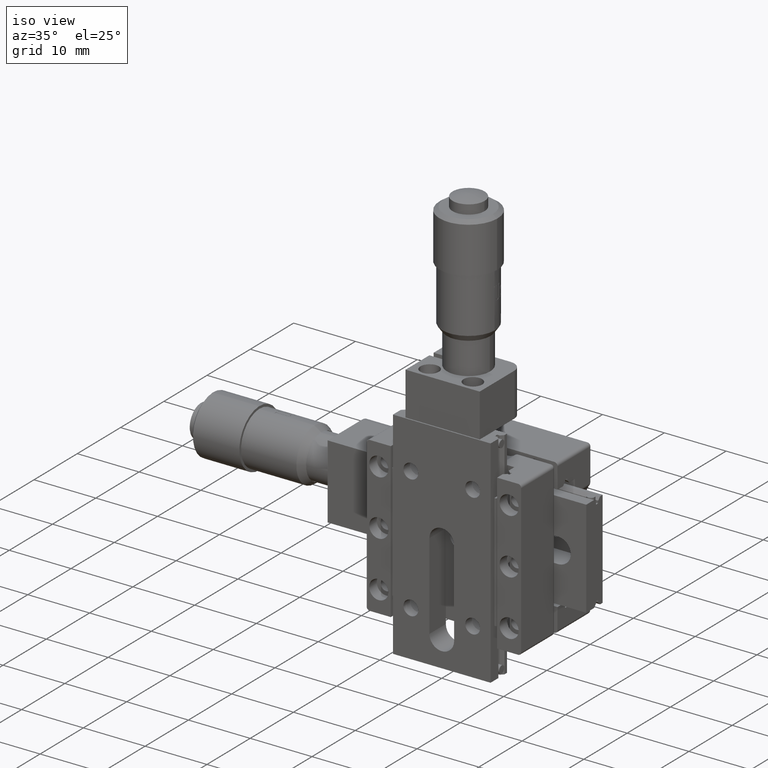
[diagram: clean part render]
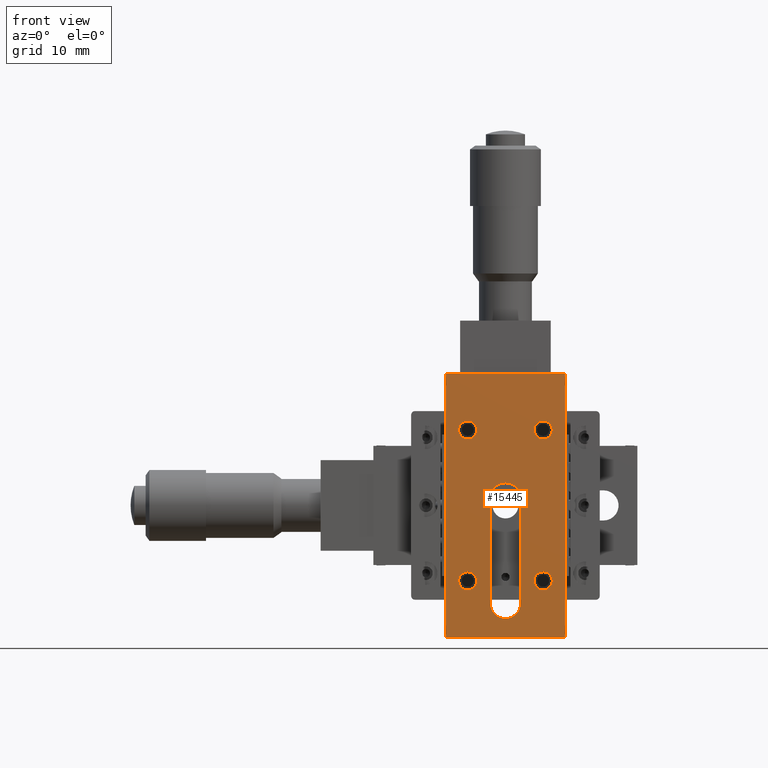
[diagram: tour spotlight — one face highlighted and labeled with its STEP entity id]
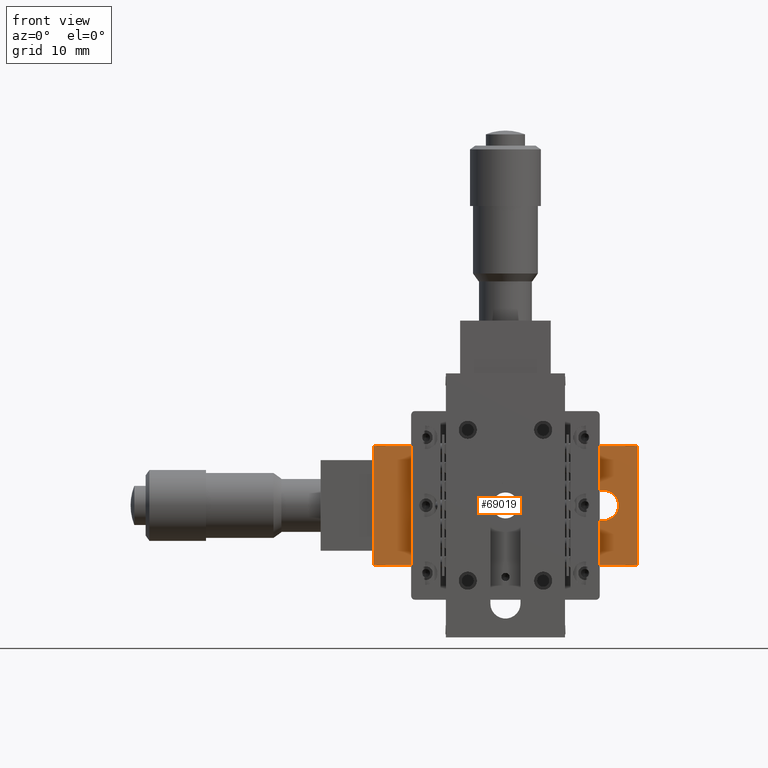
[diagram: tour spotlight — one face highlighted and labeled with its STEP entity id]
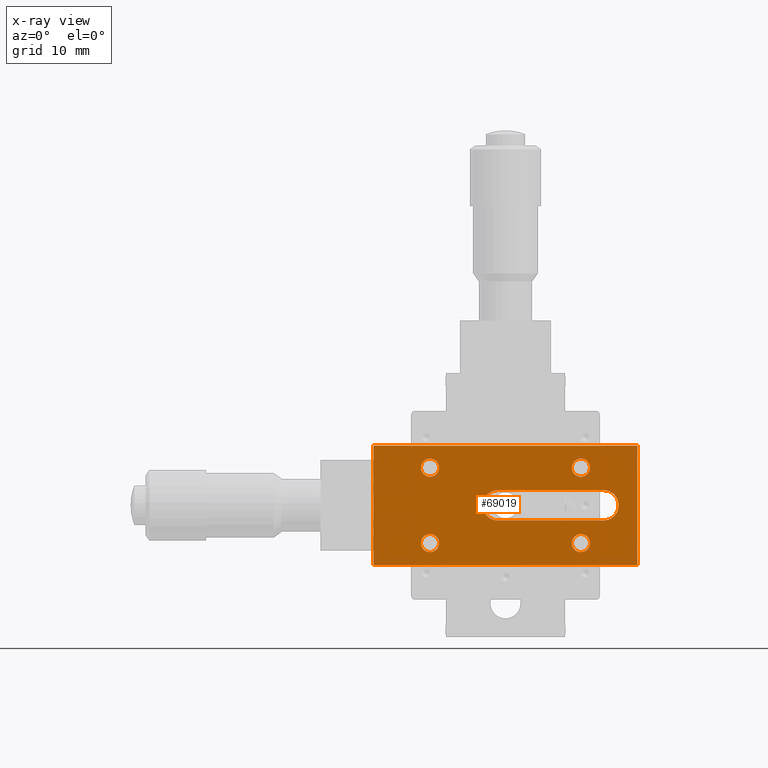
[diagram: x-ray of the same camera — body ghosted, this tour face saturated]
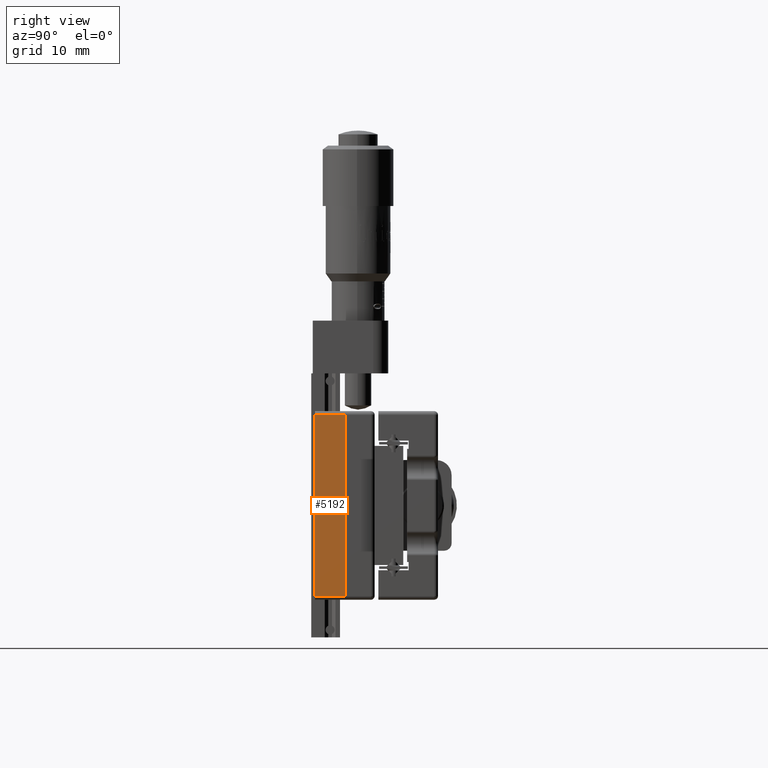
[diagram: tour spotlight — one face highlighted and labeled with its STEP entity id]
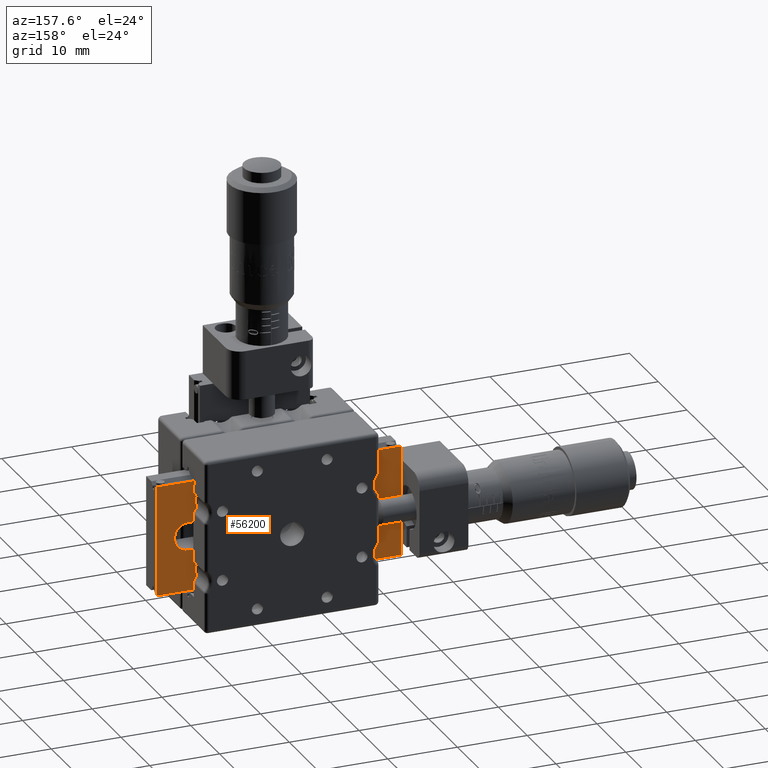
[diagram: tour spotlight — one face highlighted and labeled with its STEP entity id]
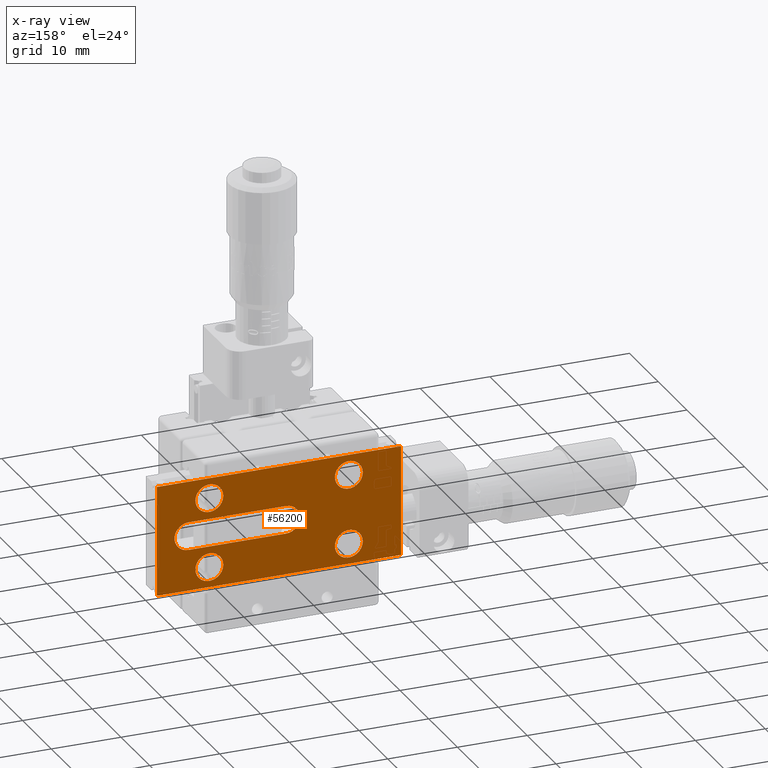
[diagram: x-ray of the same camera — body ghosted, this tour face saturated]
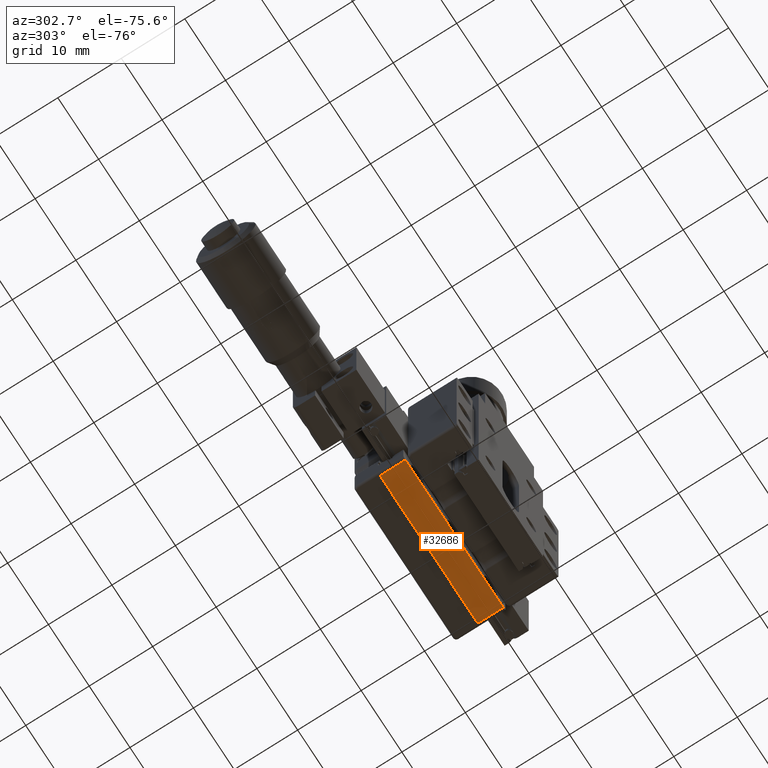
[diagram: tour spotlight — one face highlighted and labeled with its STEP entity id]
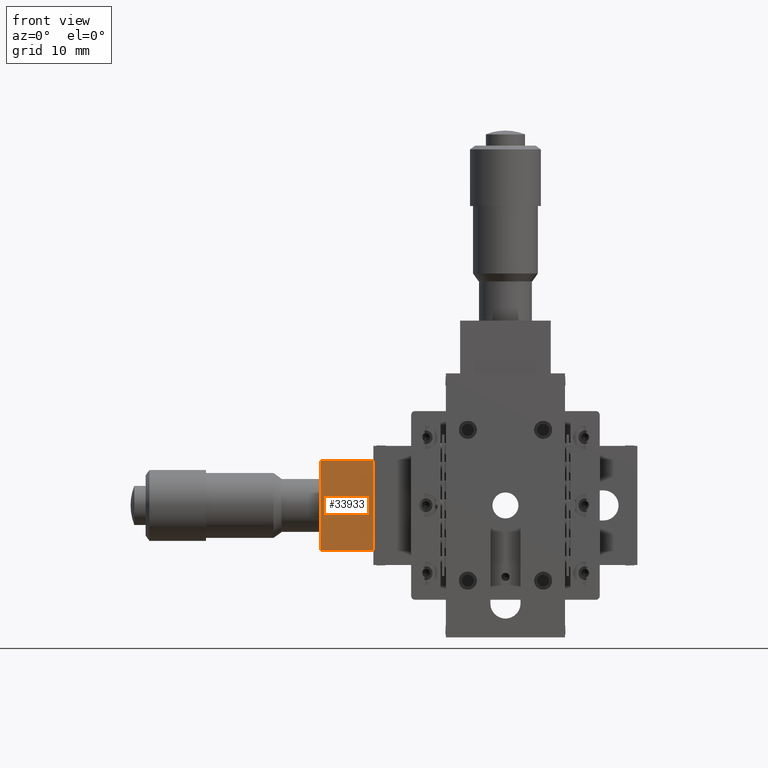
[diagram: tour spotlight — one face highlighted and labeled with its STEP entity id]
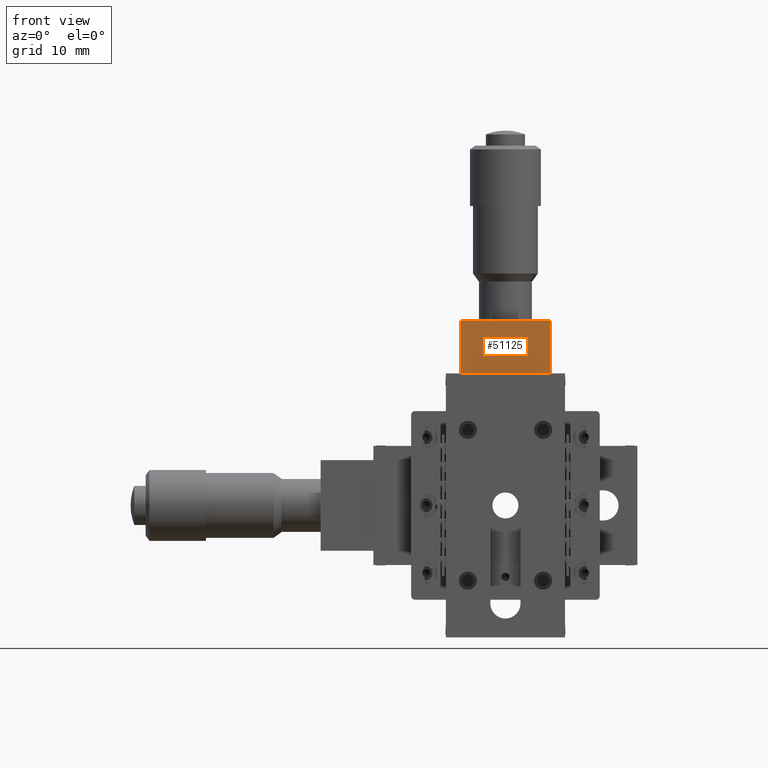
[diagram: tour spotlight — one face highlighted and labeled with its STEP entity id]
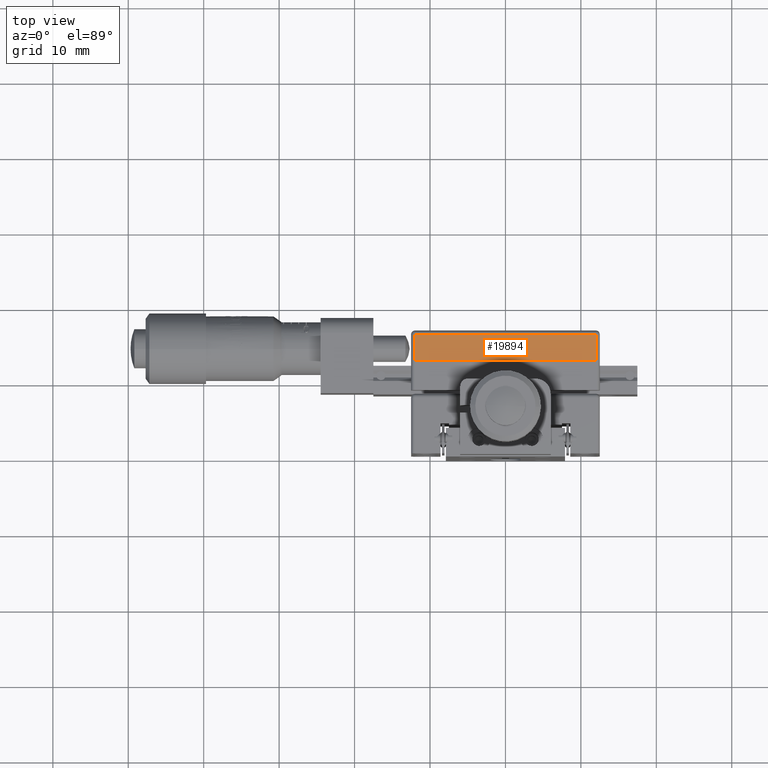
[diagram: tour spotlight — one face highlighted and labeled with its STEP entity id]
A machine part: a face-by-face anatomy tour. The part has 1664 B-rep faces; the first image is the clean iso view, then the 8 largest visible faces are spotlighted one at a time (largest first), each with its STEP entity span.

Face 1 — front view, entity #15445. In plain terms, the highlighted planar face has unit normal (-0, 1, 0).
Definition (entity closure, byte-faithful):
#30 = DIRECTION ( 'NONE',  ( 4.379057701015053300E-047, 1.110223024625156700E-015, -1.000000000000000000 ) ) ;
#72 = ORIENTED_EDGE ( 'NONE', *, *, #54747, .F. ) ;
#625 = VERTEX_POINT ( 'NONE', #32173 ) ;
#795 = ORIENTED_EDGE ( 'NONE', *, *, #53425, .T. ) ;
#1389 = VERTEX_POINT ( 'NONE', #15903 ) ;
#1984 = CIRCLE ( 'NONE', #33297, 1.199999999999999700 ) ;
#2066 = CARTESIAN_POINT ( 'NONE',  ( -7.900000000000000400, -2.276512311993883600E-014, 17.55000000000000400 ) ) ;
#3656 = EDGE_CURVE ( 'NONE', #60018, #6313, #67441, .T. ) ;
#4000 = DIRECTION ( 'NONE',  ( -0.0000000000000000000, -1.000000000000000000, 1.387778780781445900E-015 ) ) ;
#4426 = CARTESIAN_POINT ( 'NONE',  ( -1.775737858763662000E-015, -1.110223024625154200E-016, 0.9999999999999974500 ) ) ;
#4508 = DIRECTION ( 'NONE',  ( 0.0000000000000000000, 1.110223024625156500E-015, -1.000000000000000000 ) ) ;
#4767 = CARTESIAN_POINT ( 'NONE',  ( -1.733336949948512300E-030, 2.225997164373438900E-014, -13.00000000000000400 ) ) ;
#5456 = EDGE_CURVE ( 'NONE', #15382, #60496, #17064, .T. ) ;
#5814 = DIRECTION ( 'NONE',  ( 0.0000000000000000000, 1.110223024625156500E-015, -1.000000000000000000 ) ) ;
#6038 = CARTESIAN_POINT ( 'NONE',  ( 5.000000000000001800, -1.151856388048599900E-014, 10.00000000000000000 ) ) ;
#6074 = CARTESIAN_POINT ( 'NONE',  ( -7.900000000000000400, -2.275957200481570900E-014, 17.50000000000000000 ) ) ;
#6310 = CIRCLE ( 'NONE', #37347, 1.199999999999999700 ) ;
#6311 = VERTEX_POINT ( 'NONE', #54821 ) ;
#6313 = VERTEX_POINT ( 'NONE', #59848 ) ;
#6837 = CARTESIAN_POINT ( 'NONE',  ( 2.000000000000000000, 1.185163078787354600E-014, -13.00000000000000400 ) ) ;
#7320 = DIRECTION ( 'NONE',  ( -0.0000000000000000000, -1.000000000000000000, 1.387778780781445900E-015 ) ) ;
#7769 = DIRECTION ( 'NONE',  ( -1.093889404311529000E-061, 1.000000000000000000, 1.110223024625156700E-015 ) ) ;
#8413 = VERTEX_POINT ( 'NONE', #9827 ) ;
#8769 = DIRECTION ( 'NONE',  ( -0.0000000000000000000, -1.000000000000000000, 1.387778780781445900E-015 ) ) ;
#9472 = CARTESIAN_POINT ( 'NONE',  ( -7.900000000000000400, 2.275957200481570900E-014, -17.50000000000000000 ) ) ;
#9544 = EDGE_LOOP ( 'NONE', ( #34361, #795, #64409, #70511 ) ) ;
#9695 = CARTESIAN_POINT ( 'NONE',  ( -7.900000000000000400, -2.275957200481570900E-014, 17.50000000000000000 ) ) ;
#9827 = CARTESIAN_POINT ( 'NONE',  ( -5.000000000000000900, 1.285083151003618500E-014, -11.20000000000000100 ) ) ;
#10182 = AXIS2_PLACEMENT_3D ( 'NONE', #70205, #37722, #48608 ) ;
#12537 = AXIS2_PLACEMENT_3D ( 'NONE', #20853, #70081, #37343 ) ;
#13167 = FACE_BOUND ( 'NONE', #30458, .T. ) ;
#13178 = CARTESIAN_POINT ( 'NONE',  ( -5.000000000000004400, -2.199629367538591400E-014, 11.20000000000000100 ) ) ;
#13313 = DIRECTION ( 'NONE',  ( 0.0000000000000000000, 1.110223024625156700E-015, -1.000000000000000000 ) ) ;
#13408 = AXIS2_PLACEMENT_3D ( 'NONE', #2066, #7769, #50830 ) ;
#13940 = AXIS2_PLACEMENT_3D ( 'NONE', #30227, #18529, #13313 ) ;
#14210 = CIRCLE ( 'NONE', #66153, 2.000000000000000000 ) ;
#14760 = CARTESIAN_POINT ( 'NONE',  ( 5.000000000000001800, -1.151856388048599900E-014, 10.00000000000000000 ) ) ;
#14921 = CARTESIAN_POINT ( 'NONE',  ( 7.900000000000000400, 2.275957200481570900E-014, -17.50000000000000000 ) ) ;
#15382 = VERTEX_POINT ( 'NONE', #51285 ) ;
#15445 = ADVANCED_FACE ( 'NONE', ( #13167, #45527, #34507, #19978, #27673, #42139 ), #34464, .F. ) ;
#15505 = LINE ( 'NONE', #14921, #56281 ) ;
#15903 = CARTESIAN_POINT ( 'NONE',  ( -4.999999999999998200, -2.232936058277346400E-014, 8.800000000000002500 ) ) ;
#16643 = VECTOR ( 'NONE', #62807, 1000.000000000000000 ) ;
#17064 = CIRCLE ( 'NONE', #13940, 1.999999999999999600 ) ;
#17794 = AXIS2_PLACEMENT_3D ( 'NONE', #4426, #70290, #32311 ) ;
#17841 = EDGE_CURVE ( 'NONE', #8413, #6311, #25775, .T. ) ;
#18529 = DIRECTION ( 'NONE',  ( -0.0000000000000000000, -1.000000000000000000, 1.387778780781445900E-015 ) ) ;
#19527 = DIRECTION ( 'NONE',  ( 9.293161478447181700E-017, 1.110223024625156700E-015, -1.000000000000000000 ) ) ;
#19978 = FACE_BOUND ( 'NONE', #67995, .T. ) ;
#20181 = DIRECTION ( 'NONE',  ( 1.000000000000000000, 0.0000000000000000000, -0.0000000000000000000 ) ) ;
#20853 = CARTESIAN_POINT ( 'NONE',  ( -5.000000000000000900, 1.151856388048599900E-014, -10.00000000000000200 ) ) ;
#21805 = ORIENTED_EDGE ( 'NONE', *, *, #36806, .F. ) ;
#21978 = EDGE_CURVE ( 'NONE', #6313, #60018, #69569, .T. ) ;
#23156 = LINE ( 'NONE', #41671, #52898 ) ;
#23533 = EDGE_CURVE ( 'NONE', #69345, #1389, #56757, .T. ) ;
#24475 = AXIS2_PLACEMENT_3D ( 'NONE', #68229, #29990, #40925 ) ;
#25085 = AXIS2_PLACEMENT_3D ( 'NONE', #14760, #58272, #4508 ) ;
#25119 = EDGE_CURVE ( 'NONE', #65903, #43323, #15505, .T. ) ;
#25775 = CIRCLE ( 'NONE', #24475, 1.199999999999999700 ) ;
#25784 = ORIENTED_EDGE ( 'NONE', *, *, #29097, .F. ) ;
#25802 = CARTESIAN_POINT ( 'NONE',  ( -2.000000000000001300, -1.110223024625154200E-016, 0.9999999999999974500 ) ) ;
#27350 = VERTEX_POINT ( 'NONE', #50844 ) ;
#27673 = FACE_BOUND ( 'NONE', #68845, .T. ) ;
#28229 = CARTESIAN_POINT ( 'NONE',  ( 7.900000000000000400, -2.275957200481570900E-014, 17.50000000000000000 ) ) ;
#28505 = EDGE_CURVE ( 'NONE', #27350, #625, #6310, .T. ) ;
#29097 = EDGE_CURVE ( 'NONE', #1389, #69345, #1984, .T. ) ;
#29631 = DIRECTION ( 'NONE',  ( 4.379057701015053300E-047, 1.110223024625156700E-015, -1.000000000000000000 ) ) ;
#29990 = DIRECTION ( 'NONE',  ( -0.0000000000000000000, -1.000000000000000000, 1.387778780781445900E-015 ) ) ;
#30227 = CARTESIAN_POINT ( 'NONE',  ( -1.775737858763662000E-015, -1.110223024625154200E-016, 0.9999999999999974500 ) ) ;
#30417 = CARTESIAN_POINT ( 'NONE',  ( -1.775737858763662400E-015, 2.664535259100375700E-015, 2.999999999999996900 ) ) ;
#30458 = EDGE_LOOP ( 'NONE', ( #49788, #57229 ) ) ;
#31223 = ORIENTED_EDGE ( 'NONE', *, *, #69787, .F. ) ;
#32173 = CARTESIAN_POINT ( 'NONE',  ( 4.999999999999999100, 2.499389584187383700E-014, -11.20000000000000300 ) ) ;
#32311 = DIRECTION ( 'NONE',  ( 0.0000000000000000000, 1.110223024625156700E-015, -1.000000000000000000 ) ) ;
#33119 = ORIENTED_EDGE ( 'NONE', *, *, #43145, .F. ) ;
#33297 = AXIS2_PLACEMENT_3D ( 'NONE', #58221, #4000, #42094 ) ;
#33481 = CIRCLE ( 'NONE', #17794, 1.999999999999999600 ) ;
#34361 = ORIENTED_EDGE ( 'NONE', *, *, #39466, .F. ) ;
#34464 = PLANE ( 'NONE',  #13408 ) ;
#34507 = FACE_BOUND ( 'NONE', #67071, .T. ) ;
#35965 = CARTESIAN_POINT ( 'NONE',  ( 4.999999999999999100, 2.366162821232364900E-014, -10.00000000000000400 ) ) ;
#35983 = CARTESIAN_POINT ( 'NONE',  ( 5.000000000000001800, -1.018629625093581100E-014, 8.800000000000000700 ) ) ;
#36198 = DIRECTION ( 'NONE',  ( 0.0000000000000000000, 1.110223024625155200E-015, -1.000000000000000000 ) ) ;
#36806 = EDGE_CURVE ( 'NONE', #55959, #15382, #39599, .T. ) ;
#37343 = DIRECTION ( 'NONE',  ( 0.0000000000000000000, 1.110223024625156500E-015, -1.000000000000000000 ) ) ;
#37347 = AXIS2_PLACEMENT_3D ( 'NONE', #45161, #7320, #61097 ) ;
#37411 = DIRECTION ( 'NONE',  ( -0.0000000000000000000, -1.000000000000000000, 1.387778780781445900E-015 ) ) ;
#37722 = DIRECTION ( 'NONE',  ( -0.0000000000000000000, -1.000000000000000000, 1.387778780781445900E-015 ) ) ;
#38928 = DIRECTION ( 'NONE',  ( -0.0000000000000000000, -1.000000000000000000, 1.387778780781445900E-015 ) ) ;
#39466 = EDGE_CURVE ( 'NONE', #60866, #69164, #69053, .T. ) ;
#39599 = LINE ( 'NONE', #55916, #16643 ) ;
#40925 = DIRECTION ( 'NONE',  ( 0.0000000000000000000, 1.110223024625156500E-015, -1.000000000000000000 ) ) ;
#41557 = CIRCLE ( 'NONE', #48739, 1.199999999999999700 ) ;
#41671 = CARTESIAN_POINT ( 'NONE',  ( -2.000000000000000000, 2.399469511971119600E-014, -13.00000000000000400 ) ) ;
#42094 = DIRECTION ( 'NONE',  ( 0.0000000000000000000, 1.110223024625155200E-015, -1.000000000000000000 ) ) ;
#42139 = FACE_OUTER_BOUND ( 'NONE', #9544, .T. ) ;
#43145 = EDGE_CURVE ( 'NONE', #625, #27350, #41557, .T. ) ;
#43323 = VERTEX_POINT ( 'NONE', #9472 ) ;
#43592 = VECTOR ( 'NONE', #20181, 1000.000000000000000 ) ;
#43719 = ORIENTED_EDGE ( 'NONE', *, *, #56553, .F. ) ;
#45161 = CARTESIAN_POINT ( 'NONE',  ( 4.999999999999999100, 2.366162821232364900E-014, -10.00000000000000400 ) ) ;
#45424 = VECTOR ( 'NONE', #30, 1000.000000000000000 ) ;
#45527 = FACE_BOUND ( 'NONE', #50109, .T. ) ;
#45603 = EDGE_CURVE ( 'NONE', #69164, #65903, #53898, .T. ) ;
#46842 = ORIENTED_EDGE ( 'NONE', *, *, #3656, .F. ) ;
#48608 = DIRECTION ( 'NONE',  ( 0.0000000000000000000, 1.110223024625155200E-015, -1.000000000000000000 ) ) ;
#48739 = AXIS2_PLACEMENT_3D ( 'NONE', #35965, #8769, #36198 ) ;
#49204 = VERTEX_POINT ( 'NONE', #52090 ) ;
#49763 = ORIENTED_EDGE ( 'NONE', *, *, #23533, .F. ) ;
#49788 = ORIENTED_EDGE ( 'NONE', *, *, #17841, .F. ) ;
#50109 = EDGE_LOOP ( 'NONE', ( #46842, #58423 ) ) ;
#50830 = DIRECTION ( 'NONE',  ( 4.379057701015053300E-047, 1.110223024625156700E-015, -1.000000000000000000 ) ) ;
#50844 = CARTESIAN_POINT ( 'NONE',  ( 4.999999999999992900, 2.532696274926138400E-014, -8.800000000000004300 ) ) ;
#51285 = CARTESIAN_POINT ( 'NONE',  ( 1.999999999999997800, -1.110223024625153700E-016, 0.9999999999999970000 ) ) ;
#51359 = CARTESIAN_POINT ( 'NONE',  ( 7.900000000000000400, 2.275957200481570900E-014, -17.50000000000000000 ) ) ;
#52090 = CARTESIAN_POINT ( 'NONE',  ( -2.000000000000000000, 2.399469511971119600E-014, -13.00000000000000400 ) ) ;
#52898 = VECTOR ( 'NONE', #19527, 1000.000000000000000 ) ;
#53041 = DIRECTION ( 'NONE',  ( 0.0000000000000000000, 1.110223024625157500E-015, -1.000000000000000000 ) ) ;
#53141 = ORIENTED_EDGE ( 'NONE', *, *, #5456, .F. ) ;
#53425 = EDGE_CURVE ( 'NONE', #60866, #43323, #62478, .T. ) ;
#53898 = LINE ( 'NONE', #62179, #60757 ) ;
#54258 = CIRCLE ( 'NONE', #12537, 1.199999999999999700 ) ;
#54747 = EDGE_CURVE ( 'NONE', #60496, #63303, #33481, .T. ) ;
#54821 = CARTESIAN_POINT ( 'NONE',  ( -5.000000000000007100, 1.318389841742373200E-014, -8.800000000000002500 ) ) ;
#55916 = CARTESIAN_POINT ( 'NONE',  ( 2.000000000000000000, 1.185163078787354600E-014, -13.00000000000000400 ) ) ;
#55959 = VERTEX_POINT ( 'NONE', #6837 ) ;
#56281 = VECTOR ( 'NONE', #63907, 1000.000000000000000 ) ;
#56553 = EDGE_CURVE ( 'NONE', #49204, #55959, #14210, .T. ) ;
#56757 = CIRCLE ( 'NONE', #10182, 1.199999999999999700 ) ;
#57229 = ORIENTED_EDGE ( 'NONE', *, *, #63891, .F. ) ;
#58221 = CARTESIAN_POINT ( 'NONE',  ( -4.999999999999998200, -2.366162821232364900E-014, 10.00000000000000200 ) ) ;
#58272 = DIRECTION ( 'NONE',  ( -0.0000000000000000000, -1.000000000000000000, 1.387778780781445900E-015 ) ) ;
#58423 = ORIENTED_EDGE ( 'NONE', *, *, #21978, .F. ) ;
#59848 = CARTESIAN_POINT ( 'NONE',  ( 4.999999999999995600, -9.853229343548264300E-015, 11.19999999999999900 ) ) ;
#60018 = VERTEX_POINT ( 'NONE', #35983 ) ;
#60496 = VERTEX_POINT ( 'NONE', #30417 ) ;
#60757 = VECTOR ( 'NONE', #29631, 1000.000000000000000 ) ;
#60866 = VERTEX_POINT ( 'NONE', #6074 ) ;
#61097 = DIRECTION ( 'NONE',  ( 0.0000000000000000000, 1.110223024625155200E-015, -1.000000000000000000 ) ) ;
#62179 = CARTESIAN_POINT ( 'NONE',  ( 7.900000000000000400, -2.276512311993883600E-014, 17.55000000000000400 ) ) ;
#62478 = LINE ( 'NONE', #70152, #45424 ) ;
#62807 = DIRECTION ( 'NONE',  ( -1.548860246407863600E-016, -1.110223024625156700E-015, 1.000000000000000000 ) ) ;
#63303 = VERTEX_POINT ( 'NONE', #25802 ) ;
#63891 = EDGE_CURVE ( 'NONE', #6311, #8413, #54258, .T. ) ;
#63907 = DIRECTION ( 'NONE',  ( -1.000000000000000000, 0.0000000000000000000, 0.0000000000000000000 ) ) ;
#64409 = ORIENTED_EDGE ( 'NONE', *, *, #25119, .F. ) ;
#65225 = ORIENTED_EDGE ( 'NONE', *, *, #28505, .F. ) ;
#65837 = AXIS2_PLACEMENT_3D ( 'NONE', #6038, #38928, #5814 ) ;
#65903 = VERTEX_POINT ( 'NONE', #51359 ) ;
#66153 = AXIS2_PLACEMENT_3D ( 'NONE', #4767, #37411, #53041 ) ;
#67071 = EDGE_LOOP ( 'NONE', ( #31223, #72, #53141, #21805, #43719 ) ) ;
#67441 = CIRCLE ( 'NONE', #25085, 1.199999999999999700 ) ;
#67995 = EDGE_LOOP ( 'NONE', ( #25784, #49763 ) ) ;
#68229 = CARTESIAN_POINT ( 'NONE',  ( -5.000000000000000900, 1.151856388048599900E-014, -10.00000000000000200 ) ) ;
#68845 = EDGE_LOOP ( 'NONE', ( #33119, #65225 ) ) ;
#69053 = LINE ( 'NONE', #9695, #43592 ) ;
#69164 = VERTEX_POINT ( 'NONE', #28229 ) ;
#69345 = VERTEX_POINT ( 'NONE', #13178 ) ;
#69569 = CIRCLE ( 'NONE', #65837, 1.199999999999999700 ) ;
#69787 = EDGE_CURVE ( 'NONE', #63303, #49204, #23156, .T. ) ;
#70081 = DIRECTION ( 'NONE',  ( -0.0000000000000000000, -1.000000000000000000, 1.387778780781445900E-015 ) ) ;
#70152 = CARTESIAN_POINT ( 'NONE',  ( -7.900000000000000400, -2.276512311993883600E-014, 17.55000000000000400 ) ) ;
#70205 = CARTESIAN_POINT ( 'NONE',  ( -4.999999999999998200, -2.366162821232364900E-014, 10.00000000000000200 ) ) ;
#70290 = DIRECTION ( 'NONE',  ( -0.0000000000000000000, -1.000000000000000000, 1.387778780781445900E-015 ) ) ;
#70511 = ORIENTED_EDGE ( 'NONE', *, *, #45603, .F. ) ;

Face 2 — front view, entity #69019. An x-ray twin of the same camera follows (body ghosted, this face saturated) — the face is partly hidden behind the body. In plain terms, the highlighted planar face has unit normal (-0, 1, 0).
Definition (entity closure, byte-faithful):
#323 = FACE_BOUND ( 'NONE', #35045, .T. ) ;
#464 = DIRECTION ( 'NONE',  ( -1.264991082945907200E-015, -1.000000000000000000, -2.515611962345600400E-016 ) ) ;
#864 = DIRECTION ( 'NONE',  ( 0.0000000000000000000, -2.515611962345600400E-016, 1.000000000000000000 ) ) ;
#1305 = VERTEX_POINT ( 'NONE', #53684 ) ;
#1332 = CARTESIAN_POINT ( 'NONE',  ( -0.9999999999991300300, 8.400000000000027000, -9.083761207752584700E-016 ) ) ;
#1551 = EDGE_LOOP ( 'NONE', ( #53647, #10818, #36460, #35278, #23674 ) ) ;
#2034 = CIRCLE ( 'NONE', #30863, 2.000000000000000000 ) ;
#3013 = CARTESIAN_POINT ( 'NONE',  ( -0.9999999999991295900, 8.400000000000027000, 1.999999999999998700 ) ) ;
#3945 = CARTESIAN_POINT ( 'NONE',  ( 13.00000000000087000, 8.400000000000051900, -1.999999999999999100 ) ) ;
#4247 = DIRECTION ( 'NONE',  ( 1.000000000000000000, 8.673617379884035500E-016, 2.888894916580853800E-031 ) ) ;
#4307 = VECTOR ( 'NONE', #64535, 1000.000000000000000 ) ;
#5523 = CARTESIAN_POINT ( 'NONE',  ( -17.54999999999913700, 8.400000000000002100, 7.900000000000000400 ) ) ;
#5759 = VECTOR ( 'NONE', #864, 1000.000000000000000 ) ;
#6392 = DIRECTION ( 'NONE',  ( 1.000000000000000000, 1.445602896647339500E-015, 0.0000000000000000000 ) ) ;
#6817 = DIRECTION ( 'NONE',  ( -1.264991082945907200E-015, -1.000000000000000000, -2.515611962345600400E-016 ) ) ;
#8045 = DIRECTION ( 'NONE',  ( -1.264991082945907200E-015, -1.000000000000000000, -2.515611962345600400E-016 ) ) ;
#8739 = FACE_BOUND ( 'NONE', #1551, .T. ) ;
#9001 = CARTESIAN_POINT ( 'NONE',  ( 13.00000000000087000, 8.400000000000050100, 8.673617379884072000E-016 ) ) ;
#9854 = CARTESIAN_POINT ( 'NONE',  ( 13.00000000000087000, 8.400000000000051900, -1.999999999999999100 ) ) ;
#10461 = AXIS2_PLACEMENT_3D ( 'NONE', #46075, #30640, #56988 ) ;
#10818 = ORIENTED_EDGE ( 'NONE', *, *, #10973, .F. ) ;
#10876 = DIRECTION ( 'NONE',  ( 1.000000000000000000, 1.066477268766921900E-015, 2.682842974879733100E-031 ) ) ;
#10973 = EDGE_CURVE ( 'NONE', #13339, #61352, #30237, .T. ) ;
#11269 = ORIENTED_EDGE ( 'NONE', *, *, #34753, .F. ) ;
#11715 = LINE ( 'NONE', #50521, #5759 ) ;
#12201 = VECTOR ( 'NONE', #69430, 1000.000000000000000 ) ;
#12750 = EDGE_CURVE ( 'NONE', #17729, #33992, #58104, .T. ) ;
#13339 = VERTEX_POINT ( 'NONE', #15390 ) ;
#13496 = CIRCLE ( 'NONE', #51701, 1.199999999999999700 ) ;
#14443 = CARTESIAN_POINT ( 'NONE',  ( 13.00000000000087000, 8.400000000000037700, 2.000000000000000900 ) ) ;
#15037 = CARTESIAN_POINT ( 'NONE',  ( -17.49999999999913300, 8.400000000000005700, -7.900000000000000400 ) ) ;
#15236 = DIRECTION ( 'NONE',  ( -1.264991082945907200E-015, -1.000000000000000000, -2.515611962345600400E-016 ) ) ;
#15390 = CARTESIAN_POINT ( 'NONE',  ( -2.999999999999129600, 8.400000000000028800, -4.304098479295942300E-016 ) ) ;
#15966 = EDGE_LOOP ( 'NONE', ( #26153, #53280, #59095, #64206 ) ) ;
#16187 = EDGE_CURVE ( 'NONE', #37474, #35047, #44655, .T. ) ;
#17010 = DIRECTION ( 'NONE',  ( -1.264991082945907200E-015, -1.000000000000000000, -2.515611962345600400E-016 ) ) ;
#17135 = DIRECTION ( 'NONE',  ( 1.000000000000000000, 1.445602896647339500E-015, 0.0000000000000000000 ) ) ;
#17729 = VERTEX_POINT ( 'NONE', #15037 ) ;
#18287 = EDGE_CURVE ( 'NONE', #52894, #18637, #47827, .T. ) ;
#18516 = CARTESIAN_POINT ( 'NONE',  ( 10.00000000000087000, 8.400000000000050100, 5.000000000000000000 ) ) ;
#18637 = VERTEX_POINT ( 'NONE', #58696 ) ;
#19860 = CIRCLE ( 'NONE', #10461, 1.199999999999999700 ) ;
#20388 = CARTESIAN_POINT ( 'NONE',  ( -9.999999999999133100, 8.400000000000014600, 5.000000000000002700 ) ) ;
#20684 = FACE_BOUND ( 'NONE', #21389, .T. ) ;
#20848 = DIRECTION ( 'NONE',  ( 1.000000000000000000, 1.445602896647339500E-015, 0.0000000000000000000 ) ) ;
#21389 = EDGE_LOOP ( 'NONE', ( #32267, #45763 ) ) ;
#21913 = AXIS2_PLACEMENT_3D ( 'NONE', #43938, #32317, #10876 ) ;
#23674 = ORIENTED_EDGE ( 'NONE', *, *, #50261, .F. ) ;
#23830 = VERTEX_POINT ( 'NONE', #48744 ) ;
#23912 = EDGE_CURVE ( 'NONE', #17729, #52894, #11715, .T. ) ;
#24834 = EDGE_CURVE ( 'NONE', #61352, #61833, #66622, .T. ) ;
#25060 = CARTESIAN_POINT ( 'NONE',  ( 8.800000000000869300, 8.400000000000041200, -5.000000000000006200 ) ) ;
#25273 = EDGE_LOOP ( 'NONE', ( #11269, #49367 ) ) ;
#25713 = AXIS2_PLACEMENT_3D ( 'NONE', #52993, #37615, #64890 ) ;
#26153 = ORIENTED_EDGE ( 'NONE', *, *, #23912, .F. ) ;
#27447 = EDGE_CURVE ( 'NONE', #44605, #67174, #41179, .T. ) ;
#27541 = CARTESIAN_POINT ( 'NONE',  ( 11.20000000000087100, 8.400000000000051900, 5.000000000000000000 ) ) ;
#27625 = VERTEX_POINT ( 'NONE', #49622 ) ;
#27877 = VERTEX_POINT ( 'NONE', #25060 ) ;
#27948 = AXIS2_PLACEMENT_3D ( 'NONE', #20388, #53186, #20848 ) ;
#28121 = DIRECTION ( 'NONE',  ( 1.000000000000000000, 1.066477268766921900E-015, 2.682842974879733100E-031 ) ) ;
#30237 = CIRCLE ( 'NONE', #37856, 1.999999999999999600 ) ;
#30640 = DIRECTION ( 'NONE',  ( -1.264991082945907200E-015, -1.000000000000000000, -2.515611962345600400E-016 ) ) ;
#30863 = AXIS2_PLACEMENT_3D ( 'NONE', #9001, #52760, #4247 ) ;
#32267 = ORIENTED_EDGE ( 'NONE', *, *, #37908, .F. ) ;
#32317 = DIRECTION ( 'NONE',  ( -1.066477268766921900E-015, 1.000000000000000000, 2.515611962345600400E-016 ) ) ;
#32738 = CARTESIAN_POINT ( 'NONE',  ( -0.9999999999991300300, 8.400000000000027000, -9.083761207752584700E-016 ) ) ;
#33087 = CARTESIAN_POINT ( 'NONE',  ( 10.00000000000086900, 8.400000000000039400, -5.000000000000000000 ) ) ;
#33992 = VERTEX_POINT ( 'NONE', #62380 ) ;
#34263 = CIRCLE ( 'NONE', #45402, 1.199999999999999700 ) ;
#34753 = EDGE_CURVE ( 'NONE', #35047, #37474, #51122, .T. ) ;
#34892 = EDGE_CURVE ( 'NONE', #1305, #27625, #48631, .T. ) ;
#35045 = EDGE_LOOP ( 'NONE', ( #62044, #44934 ) ) ;
#35047 = VERTEX_POINT ( 'NONE', #27541 ) ;
#35278 = ORIENTED_EDGE ( 'NONE', *, *, #27447, .F. ) ;
#35498 = EDGE_CURVE ( 'NONE', #18637, #33992, #61315, .T. ) ;
#36460 = ORIENTED_EDGE ( 'NONE', *, *, #45243, .F. ) ;
#36574 = CARTESIAN_POINT ( 'NONE',  ( -17.49999999999913300, 8.400000000000002100, 7.900000000000000400 ) ) ;
#37052 = EDGE_CURVE ( 'NONE', #27877, #51769, #59049, .T. ) ;
#37474 = VERTEX_POINT ( 'NONE', #52905 ) ;
#37615 = DIRECTION ( 'NONE',  ( -1.264991082945907200E-015, -1.000000000000000000, -2.515611962345600400E-016 ) ) ;
#37829 = CIRCLE ( 'NONE', #25713, 1.199999999999999700 ) ;
#37856 = AXIS2_PLACEMENT_3D ( 'NONE', #32738, #17010, #43643 ) ;
#37908 = EDGE_CURVE ( 'NONE', #48171, #23830, #37829, .T. ) ;
#39418 = EDGE_CURVE ( 'NONE', #51769, #27877, #34263, .T. ) ;
#39474 = FACE_OUTER_BOUND ( 'NONE', #15966, .T. ) ;
#41179 = LINE ( 'NONE', #14443, #44592 ) ;
#42030 = DIRECTION ( 'NONE',  ( 1.000000000000000000, 1.066477268766921900E-015, 9.293161478447208900E-017 ) ) ;
#43643 = DIRECTION ( 'NONE',  ( 1.000000000000000000, 8.673617379884037400E-016, 2.888894916580854200E-031 ) ) ;
#43675 = CARTESIAN_POINT ( 'NONE',  ( 11.20000000000087000, 8.400000000000041200, -5.000000000000000000 ) ) ;
#43886 = AXIS2_PLACEMENT_3D ( 'NONE', #1332, #6817, #44883 ) ;
#43938 = CARTESIAN_POINT ( 'NONE',  ( -17.54999999999913700, 8.400000000000005700, -7.900000000000000400 ) ) ;
#44592 = VECTOR ( 'NONE', #63419, 1000.000000000000000 ) ;
#44605 = VERTEX_POINT ( 'NONE', #45955 ) ;
#44655 = CIRCLE ( 'NONE', #48522, 1.199999999999999700 ) ;
#44883 = DIRECTION ( 'NONE',  ( 1.000000000000000000, 8.673617379884037400E-016, 2.888894916580854200E-031 ) ) ;
#44934 = ORIENTED_EDGE ( 'NONE', *, *, #37052, .F. ) ;
#45243 = EDGE_CURVE ( 'NONE', #67174, #13339, #66216, .T. ) ;
#45402 = AXIS2_PLACEMENT_3D ( 'NONE', #62540, #67524, #56815 ) ;
#45763 = ORIENTED_EDGE ( 'NONE', *, *, #62750, .F. ) ;
#45955 = CARTESIAN_POINT ( 'NONE',  ( 13.00000000000087000, 8.400000000000037700, 2.000000000000000900 ) ) ;
#46075 = CARTESIAN_POINT ( 'NONE',  ( -9.999999999999133100, 8.400000000000014600, 5.000000000000002700 ) ) ;
#46114 = VECTOR ( 'NONE', #28121, 1000.000000000000000 ) ;
#46420 = CARTESIAN_POINT ( 'NONE',  ( -17.54999999999913700, 8.400000000000005700, -7.900000000000000400 ) ) ;
#47514 = AXIS2_PLACEMENT_3D ( 'NONE', #18516, #8045, #57031 ) ;
#47826 = CARTESIAN_POINT ( 'NONE',  ( 10.00000000000087000, 8.400000000000050100, 5.000000000000000000 ) ) ;
#47827 = LINE ( 'NONE', #5523, #46114 ) ;
#48171 = VERTEX_POINT ( 'NONE', #49515 ) ;
#48522 = AXIS2_PLACEMENT_3D ( 'NONE', #47826, #15236, #17135 ) ;
#48631 = CIRCLE ( 'NONE', #27948, 1.199999999999999700 ) ;
#48744 = CARTESIAN_POINT ( 'NONE',  ( -11.19999999999913400, 8.400000000000005700, -5.000000000000003600 ) ) ;
#48748 = VECTOR ( 'NONE', #42030, 1000.000000000000000 ) ;
#48961 = AXIS2_PLACEMENT_3D ( 'NONE', #33087, #464, #6392 ) ;
#49367 = ORIENTED_EDGE ( 'NONE', *, *, #16187, .F. ) ;
#49515 = CARTESIAN_POINT ( 'NONE',  ( -8.799999999999135600, 8.400000000000005700, -4.999999999999997300 ) ) ;
#49622 = CARTESIAN_POINT ( 'NONE',  ( -11.19999999999913200, 8.400000000000016300, 4.999999999999996400 ) ) ;
#50261 = EDGE_CURVE ( 'NONE', #61833, #44605, #2034, .T. ) ;
#50428 = EDGE_LOOP ( 'NONE', ( #50823, #62098 ) ) ;
#50521 = CARTESIAN_POINT ( 'NONE',  ( -17.49999999999913300, 8.400000000000005700, -7.900000000000000400 ) ) ;
#50823 = ORIENTED_EDGE ( 'NONE', *, *, #34892, .F. ) ;
#51122 = CIRCLE ( 'NONE', #47514, 1.199999999999999700 ) ;
#51701 = AXIS2_PLACEMENT_3D ( 'NONE', #52279, #68223, #52051 ) ;
#51769 = VERTEX_POINT ( 'NONE', #43675 ) ;
#52051 = DIRECTION ( 'NONE',  ( 1.000000000000000000, 1.445602896647339500E-015, 0.0000000000000000000 ) ) ;
#52279 = CARTESIAN_POINT ( 'NONE',  ( -9.999999999999134900, 8.400000000000003900, -4.999999999999997300 ) ) ;
#52760 = DIRECTION ( 'NONE',  ( -1.264991082945907200E-015, -1.000000000000000000, -2.515611962345600400E-016 ) ) ;
#52894 = VERTEX_POINT ( 'NONE', #36574 ) ;
#52905 = CARTESIAN_POINT ( 'NONE',  ( 8.800000000000871100, 8.400000000000051900, 4.999999999999993800 ) ) ;
#52993 = CARTESIAN_POINT ( 'NONE',  ( -9.999999999999134900, 8.400000000000003900, -4.999999999999997300 ) ) ;
#53186 = DIRECTION ( 'NONE',  ( -1.264991082945907200E-015, -1.000000000000000000, -2.515611962345600400E-016 ) ) ;
#53280 = ORIENTED_EDGE ( 'NONE', *, *, #12750, .T. ) ;
#53647 = ORIENTED_EDGE ( 'NONE', *, *, #24834, .F. ) ;
#53684 = CARTESIAN_POINT ( 'NONE',  ( -8.799999999999133800, 8.400000000000016300, 5.000000000000002700 ) ) ;
#53865 = FACE_BOUND ( 'NONE', #25273, .T. ) ;
#56815 = DIRECTION ( 'NONE',  ( 1.000000000000000000, 1.445602896647339500E-015, 0.0000000000000000000 ) ) ;
#56988 = DIRECTION ( 'NONE',  ( 1.000000000000000000, 1.445602896647339500E-015, 0.0000000000000000000 ) ) ;
#57031 = DIRECTION ( 'NONE',  ( 1.000000000000000000, 1.445602896647339500E-015, 0.0000000000000000000 ) ) ;
#57273 = FACE_BOUND ( 'NONE', #50428, .T. ) ;
#58104 = LINE ( 'NONE', #46420, #12201 ) ;
#58696 = CARTESIAN_POINT ( 'NONE',  ( 17.50000000000087000, 8.400000000000048300, 7.900000000000000400 ) ) ;
#59049 = CIRCLE ( 'NONE', #48961, 1.199999999999999700 ) ;
#59065 = CARTESIAN_POINT ( 'NONE',  ( 17.50000000000087000, 8.400000000000048300, 7.900000000000000400 ) ) ;
#59095 = ORIENTED_EDGE ( 'NONE', *, *, #35498, .F. ) ;
#59603 = PLANE ( 'NONE',  #21913 ) ;
#60813 = CARTESIAN_POINT ( 'NONE',  ( -0.9999999999991300300, 8.400000000000027000, -2.000000000000000400 ) ) ;
#61315 = LINE ( 'NONE', #59065, #4307 ) ;
#61352 = VERTEX_POINT ( 'NONE', #60813 ) ;
#61833 = VERTEX_POINT ( 'NONE', #9854 ) ;
#62044 = ORIENTED_EDGE ( 'NONE', *, *, #39418, .F. ) ;
#62098 = ORIENTED_EDGE ( 'NONE', *, *, #67096, .F. ) ;
#62380 = CARTESIAN_POINT ( 'NONE',  ( 17.50000000000087000, 8.400000000000051900, -7.900000000000000400 ) ) ;
#62540 = CARTESIAN_POINT ( 'NONE',  ( 10.00000000000086900, 8.400000000000039400, -5.000000000000000000 ) ) ;
#62750 = EDGE_CURVE ( 'NONE', #23830, #48171, #13496, .T. ) ;
#63419 = DIRECTION ( 'NONE',  ( -1.000000000000000000, -1.066477268766921900E-015, -1.548860246407866300E-016 ) ) ;
#64206 = ORIENTED_EDGE ( 'NONE', *, *, #18287, .F. ) ;
#64535 = DIRECTION ( 'NONE',  ( 0.0000000000000000000, 2.515611962345600400E-016, -1.000000000000000000 ) ) ;
#64890 = DIRECTION ( 'NONE',  ( 1.000000000000000000, 1.445602896647339500E-015, 0.0000000000000000000 ) ) ;
#66216 = CIRCLE ( 'NONE', #43886, 1.999999999999999600 ) ;
#66622 = LINE ( 'NONE', #3945, #48748 ) ;
#67096 = EDGE_CURVE ( 'NONE', #27625, #1305, #19860, .T. ) ;
#67174 = VERTEX_POINT ( 'NONE', #3013 ) ;
#67524 = DIRECTION ( 'NONE',  ( -1.264991082945907200E-015, -1.000000000000000000, -2.515611962345600400E-016 ) ) ;
#68223 = DIRECTION ( 'NONE',  ( -1.264991082945907200E-015, -1.000000000000000000, -2.515611962345600400E-016 ) ) ;
#69019 = ADVANCED_FACE ( 'NONE', ( #323, #57273, #8739, #20684, #53865, #39474 ), #59603, .F. ) ;
#69430 = DIRECTION ( 'NONE',  ( 1.000000000000000000, 1.066477268766921900E-015, 2.682842974879733100E-031 ) ) ;

Face 3 — right view, entity #5192. In plain terms, the highlighted planar face has unit normal (-1, -0, -0).
Definition (entity closure, byte-faithful):
#4969 = DIRECTION ( 'NONE',  ( 5.073516085382041800E-015, -1.000000000000000000, 1.868885533004993700E-016 ) ) ;
#5031 = PLANE ( 'NONE',  #27603 ) ;
#5192 = ADVANCED_FACE ( 'NONE', ( #48576 ), #5031, .F. ) ;
#5649 = CARTESIAN_POINT ( 'NONE',  ( 12.49999999999999800, 0.5000000000000905900, -12.00000000000025900 ) ) ;
#9358 = VECTOR ( 'NONE', #44510, 1000.000000000000000 ) ;
#11541 = CARTESIAN_POINT ( 'NONE',  ( 12.49999999999999100, 4.500000000000090600, -12.00000000000025900 ) ) ;
#12196 = VECTOR ( 'NONE', #58063, 1000.000000000000000 ) ;
#16465 = DIRECTION ( 'NONE',  ( -1.665334536937597000E-016, 1.868885533004823400E-016, 1.000000000000000000 ) ) ;
#20004 = CARTESIAN_POINT ( 'NONE',  ( 12.49999999999998200, 0.5000000000000980300, 18.27800139664778500 ) ) ;
#20651 = VERTEX_POINT ( 'NONE', #11541 ) ;
#22772 = EDGE_LOOP ( 'NONE', ( #49897, #51493, #67027, #44920 ) ) ;
#23651 = CARTESIAN_POINT ( 'NONE',  ( 12.49999999999998400, 0.5000000000000984800, 11.99999999999993600 ) ) ;
#27603 = AXIS2_PLACEMENT_3D ( 'NONE', #43808, #43103, #16465 ) ;
#30491 = EDGE_CURVE ( 'NONE', #70540, #32360, #46148, .T. ) ;
#31734 = EDGE_CURVE ( 'NONE', #53920, #20651, #44482, .T. ) ;
#32360 = VERTEX_POINT ( 'NONE', #5649 ) ;
#33191 = EDGE_CURVE ( 'NONE', #32360, #20651, #62131, .T. ) ;
#39098 = CARTESIAN_POINT ( 'NONE',  ( 12.49999999999999800, 0.5000000000000905900, -12.00000000000025900 ) ) ;
#43103 = DIRECTION ( 'NONE',  ( -1.000000000000000000, -5.073516085382017300E-015, -1.665334536937587600E-016 ) ) ;
#43808 = CARTESIAN_POINT ( 'NONE',  ( 12.49999999999998200, 0.5000000000000980300, 18.27800139664778500 ) ) ;
#44482 = LINE ( 'NONE', #65194, #46987 ) ;
#44510 = DIRECTION ( 'NONE',  ( -5.073516085382041800E-015, 1.000000000000000000, -1.868885533004991700E-016 ) ) ;
#44920 = ORIENTED_EDGE ( 'NONE', *, *, #33191, .T. ) ;
#46148 = LINE ( 'NONE', #20004, #12196 ) ;
#46987 = VECTOR ( 'NONE', #49739, 1000.000000000000000 ) ;
#48278 = CARTESIAN_POINT ( 'NONE',  ( 12.49999999999998400, 0.5000000000000984800, 11.99999999999993600 ) ) ;
#48576 = FACE_OUTER_BOUND ( 'NONE', #22772, .T. ) ;
#49739 = DIRECTION ( 'NONE',  ( 1.665334536937597000E-016, -1.868885533004823600E-016, -1.000000000000000000 ) ) ;
#49897 = ORIENTED_EDGE ( 'NONE', *, *, #31734, .F. ) ;
#51493 = ORIENTED_EDGE ( 'NONE', *, *, #59283, .T. ) ;
#53187 = CARTESIAN_POINT ( 'NONE',  ( 12.49999999999997500, 4.500000000000097700, 11.99999999999993600 ) ) ;
#53920 = VERTEX_POINT ( 'NONE', #53187 ) ;
#54050 = VECTOR ( 'NONE', #4969, 1000.000000000000000 ) ;
#57459 = LINE ( 'NONE', #48278, #54050 ) ;
#58063 = DIRECTION ( 'NONE',  ( 1.665334536937597000E-016, -1.868885533004823600E-016, -1.000000000000000000 ) ) ;
#59283 = EDGE_CURVE ( 'NONE', #53920, #70540, #57459, .T. ) ;
#62131 = LINE ( 'NONE', #39098, #9358 ) ;
#65194 = CARTESIAN_POINT ( 'NONE',  ( 12.49999999999998600, 4.500000000000097700, 18.27800139664780900 ) ) ;
#67027 = ORIENTED_EDGE ( 'NONE', *, *, #30491, .T. ) ;
#70540 = VERTEX_POINT ( 'NONE', #23651 ) ;

Face 4 — auxiliary view, entity #56200. An x-ray twin of the same camera follows (body ghosted, this face saturated) — the face is partly hidden behind the body. In plain terms, the highlighted planar face has unit normal (0, -1, -0).
Definition (entity closure, byte-faithful):
#754 = VERTEX_POINT ( 'NONE', #1791 ) ;
#966 = EDGE_CURVE ( 'NONE', #50605, #20659, #47694, .T. ) ;
#1516 = VERTEX_POINT ( 'NONE', #66060 ) ;
#1791 = CARTESIAN_POINT ( 'NONE',  ( 13.00000000000085800, 12.20000000000005100, -1.999999999999998200 ) ) ;
#2824 = DIRECTION ( 'NONE',  ( 1.264991082945907200E-015, 1.000000000000000000, 2.515611962345600400E-016 ) ) ;
#2827 = CARTESIAN_POINT ( 'NONE',  ( 17.50000000000087000, 12.20000000000005100, -7.900000000000000400 ) ) ;
#3897 = DIRECTION ( 'NONE',  ( -1.000000000000000000, -8.673617379884035500E-016, 0.0000000000000000000 ) ) ;
#4701 = DIRECTION ( 'NONE',  ( 1.264991082945907200E-015, 1.000000000000000000, 2.515611962345600400E-016 ) ) ;
#6106 = CARTESIAN_POINT ( 'NONE',  ( 17.50000000000087000, 12.20000000000005100, -7.900000000000000400 ) ) ;
#6332 = CARTESIAN_POINT ( 'NONE',  ( -7.999999999999144700, 12.20000000000001400, 4.999999999999997300 ) ) ;
#6570 = DIRECTION ( 'NONE',  ( 1.000000000000000000, 1.066477268766921900E-015, 2.682842974879733100E-031 ) ) ;
#6786 = DIRECTION ( 'NONE',  ( 0.0000000000000000000, -2.515611962345600400E-016, 1.000000000000000000 ) ) ;
#7340 = AXIS2_PLACEMENT_3D ( 'NONE', #23960, #50613, #51073 ) ;
#7501 = VECTOR ( 'NONE', #8203, 1000.000000000000000 ) ;
#8203 = DIRECTION ( 'NONE',  ( 1.000000000000000000, 1.066477268766921900E-015, 2.682842974879733100E-031 ) ) ;
#9143 = PLANE ( 'NONE',  #44283 ) ;
#9775 = CARTESIAN_POINT ( 'NONE',  ( -11.99999999999914600, 12.20000000000001700, 4.999999999999997300 ) ) ;
#10058 = CIRCLE ( 'NONE', #11637, 2.000000000000000000 ) ;
#10320 = DIRECTION ( 'NONE',  ( -1.000000000000000000, -8.673617379884035500E-016, 8.881784197001248400E-016 ) ) ;
#10357 = EDGE_LOOP ( 'NONE', ( #66371, #40973 ) ) ;
#11031 = DIRECTION ( 'NONE',  ( -1.000000000000000000, -1.066477268766921900E-015, -9.293161478447208900E-017 ) ) ;
#11637 = AXIS2_PLACEMENT_3D ( 'NONE', #42550, #4701, #53446 ) ;
#12213 = DIRECTION ( 'NONE',  ( 1.264991082945907200E-015, 1.000000000000000000, 2.515611962345600400E-016 ) ) ;
#12725 = EDGE_CURVE ( 'NONE', #47851, #54852, #63223, .T. ) ;
#13420 = DIRECTION ( 'NONE',  ( 1.264991082945907200E-015, 1.000000000000000000, 2.515611962345600400E-016 ) ) ;
#13533 = EDGE_CURVE ( 'NONE', #754, #36793, #21822, .T. ) ;
#15090 = CARTESIAN_POINT ( 'NONE',  ( 10.00000000000086000, 12.20000000000004900, 4.999999999999994700 ) ) ;
#15317 = ORIENTED_EDGE ( 'NONE', *, *, #35336, .F. ) ;
#16620 = EDGE_CURVE ( 'NONE', #39767, #48305, #49712, .T. ) ;
#17901 = DIRECTION ( 'NONE',  ( -1.000000000000000000, -8.673617379884035500E-016, 0.0000000000000000000 ) ) ;
#19412 = ORIENTED_EDGE ( 'NONE', *, *, #69244, .F. ) ;
#19662 = AXIS2_PLACEMENT_3D ( 'NONE', #50265, #12213, #17901 ) ;
#20557 = FACE_BOUND ( 'NONE', #44274, .T. ) ;
#20620 = VECTOR ( 'NONE', #6786, 1000.000000000000000 ) ;
#20659 = VERTEX_POINT ( 'NONE', #27240 ) ;
#20873 = ORIENTED_EDGE ( 'NONE', *, *, #23377, .F. ) ;
#21588 = DIRECTION ( 'NONE',  ( 0.0000000000000000000, 2.515611962345600400E-016, -1.000000000000000000 ) ) ;
#21822 = LINE ( 'NONE', #64766, #41447 ) ;
#21966 = VECTOR ( 'NONE', #35929, 1000.000000000000000 ) ;
#22316 = ORIENTED_EDGE ( 'NONE', *, *, #68756, .F. ) ;
#22854 = EDGE_CURVE ( 'NONE', #29787, #53371, #44926, .T. ) ;
#22938 = EDGE_CURVE ( 'NONE', #25857, #44982, #30477, .T. ) ;
#23261 = CARTESIAN_POINT ( 'NONE',  ( -17.49999999999913300, 12.20000000000000600, -7.900000000000000400 ) ) ;
#23377 = EDGE_CURVE ( 'NONE', #1516, #45569, #43234, .T. ) ;
#23698 = CIRCLE ( 'NONE', #33543, 2.000000000000000000 ) ;
#23960 = CARTESIAN_POINT ( 'NONE',  ( -0.9999999999991250300, 12.20000000000002600, 4.755642491606910000E-017 ) ) ;
#24053 = ORIENTED_EDGE ( 'NONE', *, *, #62928, .F. ) ;
#24221 = CARTESIAN_POINT ( 'NONE',  ( -2.999999999999124700, 12.20000000000002800, -4.304098479295948200E-016 ) ) ;
#24392 = DIRECTION ( 'NONE',  ( -1.000000000000000000, -8.673617379884035500E-016, 0.0000000000000000000 ) ) ;
#25592 = AXIS2_PLACEMENT_3D ( 'NONE', #68277, #68506, #48068 ) ;
#25857 = VERTEX_POINT ( 'NONE', #23261 ) ;
#26034 = DIRECTION ( 'NONE',  ( 1.264991082945907200E-015, 1.000000000000000000, 2.515611962345600400E-016 ) ) ;
#26860 = ORIENTED_EDGE ( 'NONE', *, *, #22938, .F. ) ;
#27240 = CARTESIAN_POINT ( 'NONE',  ( 12.00000000000086000, 12.20000000000004700, 4.999999999999993800 ) ) ;
#27593 = LINE ( 'NONE', #37371, #69225 ) ;
#27638 = CARTESIAN_POINT ( 'NONE',  ( -11.99999999999914700, 12.20000000000000800, -5.000000000000002700 ) ) ;
#27760 = ORIENTED_EDGE ( 'NONE', *, *, #13533, .F. ) ;
#29018 = DIRECTION ( 'NONE',  ( -1.000000000000000000, -8.673617379884035500E-016, 0.0000000000000000000 ) ) ;
#29317 = LINE ( 'NONE', #50317, #33596 ) ;
#29363 = AXIS2_PLACEMENT_3D ( 'NONE', #35853, #35137, #24392 ) ;
#29536 = CARTESIAN_POINT ( 'NONE',  ( -0.9999999999991250300, 12.20000000000002600, -1.999999999999999600 ) ) ;
#29787 = VERTEX_POINT ( 'NONE', #27638 ) ;
#30477 = LINE ( 'NONE', #46741, #7501 ) ;
#30921 = AXIS2_PLACEMENT_3D ( 'NONE', #41024, #13420, #36044 ) ;
#32017 = CARTESIAN_POINT ( 'NONE',  ( -0.9999999999991250300, 12.20000000000002600, 4.755642491606910000E-017 ) ) ;
#32182 = CARTESIAN_POINT ( 'NONE',  ( -7.999999999999146500, 12.20000000000000500, -5.000000000000002700 ) ) ;
#32621 = AXIS2_PLACEMENT_3D ( 'NONE', #47521, #63903, #64361 ) ;
#32971 = AXIS2_PLACEMENT_3D ( 'NONE', #46113, #2824, #29018 ) ;
#33543 = AXIS2_PLACEMENT_3D ( 'NONE', #37835, #42324, #64631 ) ;
#33596 = VECTOR ( 'NONE', #6570, 1000.000000000000000 ) ;
#34227 = CARTESIAN_POINT ( 'NONE',  ( 8.000000000000858000, 12.20000000000005100, 4.999999999999993800 ) ) ;
#34341 = LINE ( 'NONE', #6106, #20620 ) ;
#34430 = EDGE_CURVE ( 'NONE', #20659, #50605, #44218, .T. ) ;
#34445 = ORIENTED_EDGE ( 'NONE', *, *, #37234, .T. ) ;
#34640 = EDGE_CURVE ( 'NONE', #54852, #47851, #53795, .T. ) ;
#35137 = DIRECTION ( 'NONE',  ( 1.264991082945907200E-015, 1.000000000000000000, 2.515611962345600400E-016 ) ) ;
#35336 = EDGE_CURVE ( 'NONE', #36793, #46176, #63022, .T. ) ;
#35853 = CARTESIAN_POINT ( 'NONE',  ( -9.999999999999147300, 12.20000000000000600, -5.000000000000002700 ) ) ;
#35929 = DIRECTION ( 'NONE',  ( 1.000000000000000000, 1.066477268766921900E-015, 1.548860246407866300E-016 ) ) ;
#36044 = DIRECTION ( 'NONE',  ( -1.000000000000000000, -8.673617379884035500E-016, 0.0000000000000000000 ) ) ;
#36793 = VERTEX_POINT ( 'NONE', #29536 ) ;
#36904 = AXIS2_PLACEMENT_3D ( 'NONE', #15090, #26034, #3897 ) ;
#37234 = EDGE_CURVE ( 'NONE', #68892, #44181, #29317, .T. ) ;
#37371 = CARTESIAN_POINT ( 'NONE',  ( -17.49999999999913300, 12.20000000000000300, 7.900000000000003900 ) ) ;
#37775 = CIRCLE ( 'NONE', #7340, 2.000000000000000000 ) ;
#37835 = CARTESIAN_POINT ( 'NONE',  ( -9.999999999999147300, 12.20000000000000600, -5.000000000000002700 ) ) ;
#38690 = ORIENTED_EDGE ( 'NONE', *, *, #34640, .F. ) ;
#38778 = FACE_BOUND ( 'NONE', #38812, .T. ) ;
#38812 = EDGE_LOOP ( 'NONE', ( #48998, #60174 ) ) ;
#39767 = VERTEX_POINT ( 'NONE', #55807 ) ;
#40004 = CARTESIAN_POINT ( 'NONE',  ( 8.000000000000858000, 12.20000000000004000, -5.000000000000006200 ) ) ;
#40973 = ORIENTED_EDGE ( 'NONE', *, *, #966, .F. ) ;
#41024 = CARTESIAN_POINT ( 'NONE',  ( 10.00000000000085800, 12.20000000000003800, -5.000000000000005300 ) ) ;
#41298 = ORIENTED_EDGE ( 'NONE', *, *, #12725, .F. ) ;
#41447 = VECTOR ( 'NONE', #11031, 1000.000000000000000 ) ;
#42324 = DIRECTION ( 'NONE',  ( 1.264991082945907200E-015, 1.000000000000000000, 2.515611962345600400E-016 ) ) ;
#42550 = CARTESIAN_POINT ( 'NONE',  ( 13.00000000000085800, 12.20000000000005100, 1.823294283679735700E-015 ) ) ;
#43234 = LINE ( 'NONE', #56533, #21966 ) ;
#43463 = EDGE_LOOP ( 'NONE', ( #52272, #34445, #19412, #26860 ) ) ;
#44181 = VERTEX_POINT ( 'NONE', #68823 ) ;
#44218 = CIRCLE ( 'NONE', #19662, 2.000000000000000000 ) ;
#44274 = EDGE_LOOP ( 'NONE', ( #20873, #22316, #15317, #27760, #24053 ) ) ;
#44283 = AXIS2_PLACEMENT_3D ( 'NONE', #52679, #69542, #58152 ) ;
#44926 = CIRCLE ( 'NONE', #29363, 2.000000000000000000 ) ;
#44982 = VERTEX_POINT ( 'NONE', #2827 ) ;
#45569 = VERTEX_POINT ( 'NONE', #61472 ) ;
#45860 = FACE_OUTER_BOUND ( 'NONE', #43463, .T. ) ;
#46113 = CARTESIAN_POINT ( 'NONE',  ( -9.999999999999145600, 12.20000000000001500, 4.999999999999997300 ) ) ;
#46171 = FACE_BOUND ( 'NONE', #10357, .T. ) ;
#46176 = VERTEX_POINT ( 'NONE', #24221 ) ;
#46741 = CARTESIAN_POINT ( 'NONE',  ( -17.54999999999913700, 12.20000000000000600, -7.900000000000000400 ) ) ;
#47521 = CARTESIAN_POINT ( 'NONE',  ( 10.00000000000085800, 12.20000000000003800, -5.000000000000005300 ) ) ;
#47694 = CIRCLE ( 'NONE', #36904, 2.000000000000000000 ) ;
#47851 = VERTEX_POINT ( 'NONE', #9775 ) ;
#48068 = DIRECTION ( 'NONE',  ( -1.000000000000000000, -8.673617379884035500E-016, 0.0000000000000000000 ) ) ;
#48305 = VERTEX_POINT ( 'NONE', #40004 ) ;
#48998 = ORIENTED_EDGE ( 'NONE', *, *, #16620, .F. ) ;
#49712 = CIRCLE ( 'NONE', #32621, 2.000000000000000000 ) ;
#50265 = CARTESIAN_POINT ( 'NONE',  ( 10.00000000000086000, 12.20000000000004900, 4.999999999999994700 ) ) ;
#50317 = CARTESIAN_POINT ( 'NONE',  ( -17.54999999999913700, 12.20000000000000300, 7.900000000000003900 ) ) ;
#50431 = EDGE_CURVE ( 'NONE', #68892, #25857, #27593, .T. ) ;
#50605 = VERTEX_POINT ( 'NONE', #34227 ) ;
#50613 = DIRECTION ( 'NONE',  ( 1.264991082945907200E-015, 1.000000000000000000, 2.515611962345600400E-016 ) ) ;
#51073 = DIRECTION ( 'NONE',  ( -1.000000000000000000, -8.673617379884035500E-016, -2.678246328913499900E-031 ) ) ;
#51886 = EDGE_LOOP ( 'NONE', ( #38690, #41298 ) ) ;
#52272 = ORIENTED_EDGE ( 'NONE', *, *, #50431, .F. ) ;
#52679 = CARTESIAN_POINT ( 'NONE',  ( -17.54999999999913700, 12.20000000000000300, 7.900000000000003900 ) ) ;
#53371 = VERTEX_POINT ( 'NONE', #32182 ) ;
#53446 = DIRECTION ( 'NONE',  ( -1.000000000000000000, -8.673617379884035500E-016, -1.925929944387235900E-031 ) ) ;
#53795 = CIRCLE ( 'NONE', #32971, 2.000000000000000000 ) ;
#54852 = VERTEX_POINT ( 'NONE', #6332 ) ;
#55807 = CARTESIAN_POINT ( 'NONE',  ( 12.00000000000085800, 12.20000000000003700, -5.000000000000006200 ) ) ;
#56200 = ADVANCED_FACE ( 'NONE', ( #38778, #60430, #20557, #68397, #46171, #45860 ), #9143, .F. ) ;
#56533 = CARTESIAN_POINT ( 'NONE',  ( 13.00000000000085800, 12.20000000000003700, 2.000000000000001800 ) ) ;
#57643 = ORIENTED_EDGE ( 'NONE', *, *, #62937, .F. ) ;
#58152 = DIRECTION ( 'NONE',  ( -1.000000000000000000, -1.066477268766921900E-015, -2.682842974879733100E-031 ) ) ;
#58825 = DIRECTION ( 'NONE',  ( 1.264991082945907200E-015, 1.000000000000000000, 2.515611962345600400E-016 ) ) ;
#60174 = ORIENTED_EDGE ( 'NONE', *, *, #65420, .F. ) ;
#60430 = FACE_BOUND ( 'NONE', #51886, .T. ) ;
#61472 = CARTESIAN_POINT ( 'NONE',  ( 13.00000000000085800, 12.20000000000003700, 2.000000000000001800 ) ) ;
#62928 = EDGE_CURVE ( 'NONE', #45569, #754, #10058, .T. ) ;
#62937 = EDGE_CURVE ( 'NONE', #53371, #29787, #23698, .T. ) ;
#63022 = CIRCLE ( 'NONE', #65319, 2.000000000000000000 ) ;
#63223 = CIRCLE ( 'NONE', #25592, 2.000000000000000000 ) ;
#63903 = DIRECTION ( 'NONE',  ( 1.264991082945907200E-015, 1.000000000000000000, 2.515611962345600400E-016 ) ) ;
#64281 = CIRCLE ( 'NONE', #30921, 2.000000000000000000 ) ;
#64361 = DIRECTION ( 'NONE',  ( -1.000000000000000000, -8.673617379884035500E-016, 0.0000000000000000000 ) ) ;
#64631 = DIRECTION ( 'NONE',  ( -1.000000000000000000, -8.673617379884035500E-016, 0.0000000000000000000 ) ) ;
#64766 = CARTESIAN_POINT ( 'NONE',  ( 13.00000000000085800, 12.20000000000005100, -1.999999999999998200 ) ) ;
#65319 = AXIS2_PLACEMENT_3D ( 'NONE', #32017, #58825, #10320 ) ;
#65420 = EDGE_CURVE ( 'NONE', #48305, #39767, #64281, .T. ) ;
#66060 = CARTESIAN_POINT ( 'NONE',  ( -0.9999999999991250300, 12.20000000000002600, 1.999999999999999600 ) ) ;
#66202 = ORIENTED_EDGE ( 'NONE', *, *, #22854, .F. ) ;
#66371 = ORIENTED_EDGE ( 'NONE', *, *, #34430, .F. ) ;
#68180 = CARTESIAN_POINT ( 'NONE',  ( -17.49999999999913300, 12.20000000000000300, 7.900000000000003900 ) ) ;
#68277 = CARTESIAN_POINT ( 'NONE',  ( -9.999999999999145600, 12.20000000000001500, 4.999999999999997300 ) ) ;
#68397 = FACE_BOUND ( 'NONE', #69661, .T. ) ;
#68506 = DIRECTION ( 'NONE',  ( 1.264991082945907200E-015, 1.000000000000000000, 2.515611962345600400E-016 ) ) ;
#68756 = EDGE_CURVE ( 'NONE', #46176, #1516, #37775, .T. ) ;
#68823 = CARTESIAN_POINT ( 'NONE',  ( 17.50000000000087000, 12.20000000000004700, 7.900000000000003900 ) ) ;
#68892 = VERTEX_POINT ( 'NONE', #68180 ) ;
#69225 = VECTOR ( 'NONE', #21588, 1000.000000000000000 ) ;
#69244 = EDGE_CURVE ( 'NONE', #44982, #44181, #34341, .T. ) ;
#69542 = DIRECTION ( 'NONE',  ( 1.066477268766921900E-015, -1.000000000000000000, -2.515611962345600400E-016 ) ) ;
#69661 = EDGE_LOOP ( 'NONE', ( #57643, #66202 ) ) ;

Face 5 — auxiliary view, entity #32686. In plain terms, the highlighted planar face has unit normal (0, -0, 1).
Definition (entity closure, byte-faithful):
#311 = DIRECTION ( 'NONE',  ( 1.000000000000000000, 1.227876978355308100E-016, -1.378041393807946600E-029 ) ) ;
#892 = LINE ( 'NONE', #22544, #16176 ) ;
#2423 = VERTEX_POINT ( 'NONE', #64134 ) ;
#3946 = EDGE_CURVE ( 'NONE', #2423, #21817, #33415, .T. ) ;
#5284 = VECTOR ( 'NONE', #12272, 1000.000000000000000 ) ;
#7809 = VECTOR ( 'NONE', #40416, 1000.000000000000000 ) ;
#12272 = DIRECTION ( 'NONE',  ( -1.000000000000000000, -1.227876978355308300E-016, 1.378041393807946600E-029 ) ) ;
#16176 = VECTOR ( 'NONE', #38571, 1000.000000000000000 ) ;
#16740 = DIRECTION ( 'NONE',  ( 1.381130255822985900E-029, -2.515611962345465800E-016, 1.000000000000000000 ) ) ;
#18189 = ORIENTED_EDGE ( 'NONE', *, *, #3946, .T. ) ;
#19923 = ORIENTED_EDGE ( 'NONE', *, *, #58535, .T. ) ;
#20478 = FACE_OUTER_BOUND ( 'NONE', #64141, .T. ) ;
#20600 = LINE ( 'NONE', #22497, #5284 ) ;
#20842 = CARTESIAN_POINT ( 'NONE',  ( 12.00000000000114400, 12.89999999999998100, -12.49999999999914400 ) ) ;
#21817 = VERTEX_POINT ( 'NONE', #55289 ) ;
#22497 = CARTESIAN_POINT ( 'NONE',  ( 18.27800139664902100, 12.89999999999998100, -12.49999999999915600 ) ) ;
#22544 = CARTESIAN_POINT ( 'NONE',  ( -11.99999999999905900, 8.899999999999975500, -12.49999999999914400 ) ) ;
#25248 = EDGE_CURVE ( 'NONE', #57137, #65606, #20600, .T. ) ;
#26022 = VECTOR ( 'NONE', #45376, 1000.000000000000000 ) ;
#26899 = ORIENTED_EDGE ( 'NONE', *, *, #25248, .F. ) ;
#27672 = CARTESIAN_POINT ( 'NONE',  ( 18.27800139664899600, 8.899999999999980800, -12.49999999999913100 ) ) ;
#32537 = ORIENTED_EDGE ( 'NONE', *, *, #41308, .T. ) ;
#32686 = ADVANCED_FACE ( 'NONE', ( #20478 ), #43607, .F. ) ;
#33415 = LINE ( 'NONE', #51304, #7809 ) ;
#34233 = CARTESIAN_POINT ( 'NONE',  ( 12.00000000000114400, 8.899999999999982600, -12.49999999999913100 ) ) ;
#35146 = AXIS2_PLACEMENT_3D ( 'NONE', #27672, #16740, #311 ) ;
#38571 = DIRECTION ( 'NONE',  ( -1.227876978355464400E-016, 1.000000000000000000, 2.515611962345713800E-016 ) ) ;
#40416 = DIRECTION ( 'NONE',  ( -1.000000000000000000, -1.227876978355308300E-016, 1.378041393807946600E-029 ) ) ;
#41308 = EDGE_CURVE ( 'NONE', #21817, #65606, #892, .T. ) ;
#43607 = PLANE ( 'NONE',  #35146 ) ;
#45376 = DIRECTION ( 'NONE',  ( 1.227876978355466400E-016, -1.000000000000000000, -2.515611962345713800E-016 ) ) ;
#51304 = CARTESIAN_POINT ( 'NONE',  ( 18.27800139664899600, 8.899999999999980800, -12.49999999999913100 ) ) ;
#52844 = CARTESIAN_POINT ( 'NONE',  ( -11.99999999999905900, 12.89999999999997700, -12.49999999999915600 ) ) ;
#55289 = CARTESIAN_POINT ( 'NONE',  ( -11.99999999999905900, 8.899999999999975500, -12.49999999999914400 ) ) ;
#57137 = VERTEX_POINT ( 'NONE', #20842 ) ;
#57527 = LINE ( 'NONE', #34233, #26022 ) ;
#58535 = EDGE_CURVE ( 'NONE', #57137, #2423, #57527, .T. ) ;
#64134 = CARTESIAN_POINT ( 'NONE',  ( 12.00000000000114400, 8.899999999999982600, -12.49999999999913100 ) ) ;
#64141 = EDGE_LOOP ( 'NONE', ( #26899, #19923, #18189, #32537 ) ) ;
#65606 = VERTEX_POINT ( 'NONE', #52844 ) ;

Face 6 — front view, entity #33933. In plain terms, the highlighted planar face has unit normal (0, 1, 0).
Definition (entity closure, byte-faithful):
#2993 = VECTOR ( 'NONE', #6910, 1000.000000000000000 ) ;
#5535 = DIRECTION ( 'NONE',  ( -5.551115123125777800E-016, 8.627508404916921800E-016, -1.000000000000000000 ) ) ;
#5830 = ORIENTED_EDGE ( 'NONE', *, *, #22221, .T. ) ;
#6910 = DIRECTION ( 'NONE',  ( -1.000000000000000000, -1.955095636017512200E-016, -2.220446049250317500E-016 ) ) ;
#7684 = CARTESIAN_POINT ( 'NONE',  ( -24.49999999999914000, 8.600000000000033400, -5.999999999999137600 ) ) ;
#8783 = EDGE_CURVE ( 'NONE', #24283, #40932, #56636, .T. ) ;
#10050 = EDGE_CURVE ( 'NONE', #24283, #44912, #40536, .T. ) ;
#22221 = EDGE_CURVE ( 'NONE', #40932, #33892, #44114, .T. ) ;
#24081 = DIRECTION ( 'NONE',  ( 3.854263915582016900E-016, 1.000000000000000000, 8.627508404916919900E-016 ) ) ;
#24283 = VERTEX_POINT ( 'NONE', #64968 ) ;
#24308 = DIRECTION ( 'NONE',  ( -1.000000000000000000, -1.955095636017512200E-016, -2.220446049250317500E-016 ) ) ;
#26651 = EDGE_CURVE ( 'NONE', #44912, #33892, #67614, .T. ) ;
#30069 = CARTESIAN_POINT ( 'NONE',  ( -17.49999999999914000, 8.600000000000015600, 6.000000000000874000 ) ) ;
#30684 = CARTESIAN_POINT ( 'NONE',  ( -17.49999999999914000, 8.600000000000033400, -5.999999999999126900 ) ) ;
#33892 = VERTEX_POINT ( 'NONE', #7684 ) ;
#33933 = ADVANCED_FACE ( 'NONE', ( #51891 ), #67845, .F. ) ;
#34083 = CARTESIAN_POINT ( 'NONE',  ( -17.49999999999914000, 8.600000000000033400, -5.999999999999126900 ) ) ;
#34491 = ORIENTED_EDGE ( 'NONE', *, *, #10050, .F. ) ;
#34598 = VECTOR ( 'NONE', #24308, 1000.000000000000000 ) ;
#35450 = EDGE_LOOP ( 'NONE', ( #5830, #38383, #34491, #35712 ) ) ;
#35712 = ORIENTED_EDGE ( 'NONE', *, *, #8783, .T. ) ;
#36616 = AXIS2_PLACEMENT_3D ( 'NONE', #30069, #24081, #46923 ) ;
#38383 = ORIENTED_EDGE ( 'NONE', *, *, #26651, .F. ) ;
#40536 = LINE ( 'NONE', #43831, #65208 ) ;
#40932 = VERTEX_POINT ( 'NONE', #48172 ) ;
#43831 = CARTESIAN_POINT ( 'NONE',  ( -17.49999999999914000, 8.600000000000015600, 6.000000000000874000 ) ) ;
#44114 = LINE ( 'NONE', #66867, #63653 ) ;
#44912 = VERTEX_POINT ( 'NONE', #30684 ) ;
#45270 = CARTESIAN_POINT ( 'NONE',  ( -17.49999999999914000, 8.600000000000015600, 6.000000000000874000 ) ) ;
#46923 = DIRECTION ( 'NONE',  ( 5.551115123125777800E-016, -8.627508404916921800E-016, 1.000000000000000000 ) ) ;
#48172 = CARTESIAN_POINT ( 'NONE',  ( -24.49999999999914000, 8.600000000000028100, 6.000000000000862400 ) ) ;
#50033 = DIRECTION ( 'NONE',  ( -5.551115123125777800E-016, 8.627508404916921800E-016, -1.000000000000000000 ) ) ;
#51891 = FACE_OUTER_BOUND ( 'NONE', #35450, .T. ) ;
#56636 = LINE ( 'NONE', #45270, #34598 ) ;
#63653 = VECTOR ( 'NONE', #50033, 1000.000000000000000 ) ;
#64968 = CARTESIAN_POINT ( 'NONE',  ( -17.49999999999914000, 8.600000000000015600, 6.000000000000874000 ) ) ;
#65208 = VECTOR ( 'NONE', #5535, 1000.000000000000000 ) ;
#66867 = CARTESIAN_POINT ( 'NONE',  ( -24.49999999999914000, 8.600000000000028100, 6.000000000000862400 ) ) ;
#67614 = LINE ( 'NONE', #34083, #2993 ) ;
#67845 = PLANE ( 'NONE',  #36616 ) ;

Face 7 — front view, entity #51125. In plain terms, the highlighted planar face has unit normal (0, 1, -0).
Definition (entity closure, byte-faithful):
#898 = CARTESIAN_POINT ( 'NONE',  ( -5.999999999999139400, 0.2000000000000080000, 24.50000000000000000 ) ) ;
#1996 = DIRECTION ( 'NONE',  ( 1.000000000000000000, -6.111896442571321900E-016, -5.551115123125777800E-016 ) ) ;
#2734 = CARTESIAN_POINT ( 'NONE',  ( -5.999999999999128700, 0.2000000000000070900, 17.50000000000000000 ) ) ;
#3662 = DIRECTION ( 'NONE',  ( -2.775557561562894800E-016, -1.142172911347805300E-016, 1.000000000000000000 ) ) ;
#5565 = EDGE_CURVE ( 'NONE', #48726, #16939, #30658, .T. ) ;
#15845 = LINE ( 'NONE', #2734, #43916 ) ;
#16291 = EDGE_CURVE ( 'NONE', #48726, #37379, #31851, .T. ) ;
#16939 = VERTEX_POINT ( 'NONE', #50993 ) ;
#17588 = ORIENTED_EDGE ( 'NONE', *, *, #16291, .T. ) ;
#18867 = PLANE ( 'NONE',  #24899 ) ;
#21855 = DIRECTION ( 'NONE',  ( -2.775557561562894800E-016, -1.142172911347805300E-016, 1.000000000000000000 ) ) ;
#22577 = ORIENTED_EDGE ( 'NONE', *, *, #5565, .F. ) ;
#24599 = DIRECTION ( 'NONE',  ( 6.111896442571319000E-016, 1.000000000000000000, -5.082140893937403600E-016 ) ) ;
#24899 = AXIS2_PLACEMENT_3D ( 'NONE', #56906, #24599, #1996 ) ;
#25077 = ORIENTED_EDGE ( 'NONE', *, *, #57409, .F. ) ;
#28311 = CARTESIAN_POINT ( 'NONE',  ( 6.000000000000872200, 0.1999999999999934300, 17.50000000000000000 ) ) ;
#29265 = DIRECTION ( 'NONE',  ( -1.000000000000000000, 6.111896442571321900E-016, 5.551115123125777800E-016 ) ) ;
#30658 = LINE ( 'NONE', #62774, #66389 ) ;
#30856 = LINE ( 'NONE', #55424, #69069 ) ;
#31851 = LINE ( 'NONE', #28311, #53069 ) ;
#34425 = EDGE_LOOP ( 'NONE', ( #44361, #25077, #22577, #17588 ) ) ;
#37379 = VERTEX_POINT ( 'NONE', #46291 ) ;
#40138 = FACE_OUTER_BOUND ( 'NONE', #34425, .T. ) ;
#43430 = CARTESIAN_POINT ( 'NONE',  ( 6.000000000000872200, 0.1999999999999934300, 17.50000000000000000 ) ) ;
#43916 = VECTOR ( 'NONE', #3662, 1000.000000000000000 ) ;
#44361 = ORIENTED_EDGE ( 'NONE', *, *, #55436, .T. ) ;
#44986 = DIRECTION ( 'NONE',  ( -1.000000000000000000, 6.111896442571321900E-016, 5.551115123125777800E-016 ) ) ;
#46291 = CARTESIAN_POINT ( 'NONE',  ( 6.000000000000860600, 0.2000000000000048100, 24.50000000000000000 ) ) ;
#48726 = VERTEX_POINT ( 'NONE', #43430 ) ;
#50993 = CARTESIAN_POINT ( 'NONE',  ( -5.999999999999128700, 0.2000000000000070900, 17.50000000000000000 ) ) ;
#51125 = ADVANCED_FACE ( 'NONE', ( #40138 ), #18867, .F. ) ;
#53069 = VECTOR ( 'NONE', #21855, 1000.000000000000000 ) ;
#55424 = CARTESIAN_POINT ( 'NONE',  ( 6.000000000000860600, 0.2000000000000048100, 24.50000000000000000 ) ) ;
#55436 = EDGE_CURVE ( 'NONE', #37379, #61283, #30856, .T. ) ;
#56906 = CARTESIAN_POINT ( 'NONE',  ( 6.000000000000872200, 0.1999999999999934300, 17.50000000000000000 ) ) ;
#57409 = EDGE_CURVE ( 'NONE', #16939, #61283, #15845, .T. ) ;
#61283 = VERTEX_POINT ( 'NONE', #898 ) ;
#62774 = CARTESIAN_POINT ( 'NONE',  ( 6.000000000000872200, 0.1999999999999934300, 17.50000000000000000 ) ) ;
#66389 = VECTOR ( 'NONE', #29265, 1000.000000000000000 ) ;
#69069 = VECTOR ( 'NONE', #44986, 1000.000000000000000 ) ;

Face 8 — top view, entity #19894. In plain terms, the highlighted planar face has unit normal (0, 0, -1).
Definition (entity closure, byte-faithful):
#993 = VECTOR ( 'NONE', #32948, 1000.000000000000000 ) ;
#1605 = ORIENTED_EDGE ( 'NONE', *, *, #21656, .T. ) ;
#1948 = VERTEX_POINT ( 'NONE', #58603 ) ;
#2023 = CARTESIAN_POINT ( 'NONE',  ( 12.50000000000090600, 12.90000000000004700, 12.50000000000090600 ) ) ;
#2997 = EDGE_CURVE ( 'NONE', #64549, #26956, #70538, .T. ) ;
#5058 = CARTESIAN_POINT ( 'NONE',  ( -11.99999999999919900, 12.90000000000004500, 12.50000000000090600 ) ) ;
#5078 = CARTESIAN_POINT ( 'NONE',  ( 12.50000000000090600, 16.30000000000005800, 12.50000000000092000 ) ) ;
#6998 = CARTESIAN_POINT ( 'NONE',  ( 12.00000000000090600, 16.80000000000005800, 12.50000000000092000 ) ) ;
#8199 = DIRECTION ( 'NONE',  ( -1.227876978355398100E-016, 1.000000000000000000, 5.739014521284333500E-016 ) ) ;
#11238 = ORIENTED_EDGE ( 'NONE', *, *, #25634, .T. ) ;
#14777 = ORIENTED_EDGE ( 'NONE', *, *, #2997, .F. ) ;
#16261 = PLANE ( 'NONE',  #49808 ) ;
#19885 = EDGE_CURVE ( 'NONE', #1948, #26956, #52784, .T. ) ;
#19894 = ADVANCED_FACE ( 'NONE', ( #51079 ), #16261, .F. ) ;
#21656 = EDGE_CURVE ( 'NONE', #64549, #33784, #58592, .T. ) ;
#21677 = DIRECTION ( 'NONE',  ( -1.227876978355398100E-016, 1.000000000000000000, 5.739014521284333500E-016 ) ) ;
#25069 = CARTESIAN_POINT ( 'NONE',  ( 12.00000000000090600, 12.90000000000004700, 12.50000000000090600 ) ) ;
#25634 = EDGE_CURVE ( 'NONE', #33784, #1948, #52883, .T. ) ;
#26487 = CARTESIAN_POINT ( 'NONE',  ( -11.99999999999919900, 12.90000000000004500, 12.50000000000090600 ) ) ;
#26956 = VERTEX_POINT ( 'NONE', #5058 ) ;
#32948 = DIRECTION ( 'NONE',  ( -1.000000000000000000, -1.227876978355375400E-016, 2.162203410527708500E-031 ) ) ;
#33784 = VERTEX_POINT ( 'NONE', #67428 ) ;
#34986 = VECTOR ( 'NONE', #65468, 1000.000000000000000 ) ;
#38424 = CARTESIAN_POINT ( 'NONE',  ( 12.50000000000090600, 16.80000000000005800, 12.50000000000092000 ) ) ;
#42381 = ORIENTED_EDGE ( 'NONE', *, *, #19885, .T. ) ;
#45804 = DIRECTION ( 'NONE',  ( -1.000000000000000000, -1.227876978355375400E-016, 2.162203410527708500E-031 ) ) ;
#49528 = EDGE_LOOP ( 'NONE', ( #14777, #1605, #11238, #42381 ) ) ;
#49808 = AXIS2_PLACEMENT_3D ( 'NONE', #38424, #59759, #21677 ) ;
#51079 = FACE_OUTER_BOUND ( 'NONE', #49528, .T. ) ;
#52784 = LINE ( 'NONE', #26487, #34986 ) ;
#52883 = LINE ( 'NONE', #5078, #993 ) ;
#53466 = VECTOR ( 'NONE', #8199, 1000.000000000000000 ) ;
#58592 = LINE ( 'NONE', #6998, #53466 ) ;
#58603 = CARTESIAN_POINT ( 'NONE',  ( -11.99999999999919900, 16.30000000000002900, 12.50000000000092000 ) ) ;
#59759 = DIRECTION ( 'NONE',  ( 1.766409231118431300E-031, 5.739014521284333500E-016, -1.000000000000000000 ) ) ;
#62916 = VECTOR ( 'NONE', #45804, 1000.000000000000000 ) ;
#64549 = VERTEX_POINT ( 'NONE', #25069 ) ;
#65468 = DIRECTION ( 'NONE',  ( 1.227876978355398100E-016, -1.000000000000000000, -5.739014521284333500E-016 ) ) ;
#67428 = CARTESIAN_POINT ( 'NONE',  ( 12.00000000000090600, 16.30000000000005800, 12.50000000000092000 ) ) ;
#70538 = LINE ( 'NONE', #2023, #62916 ) ;